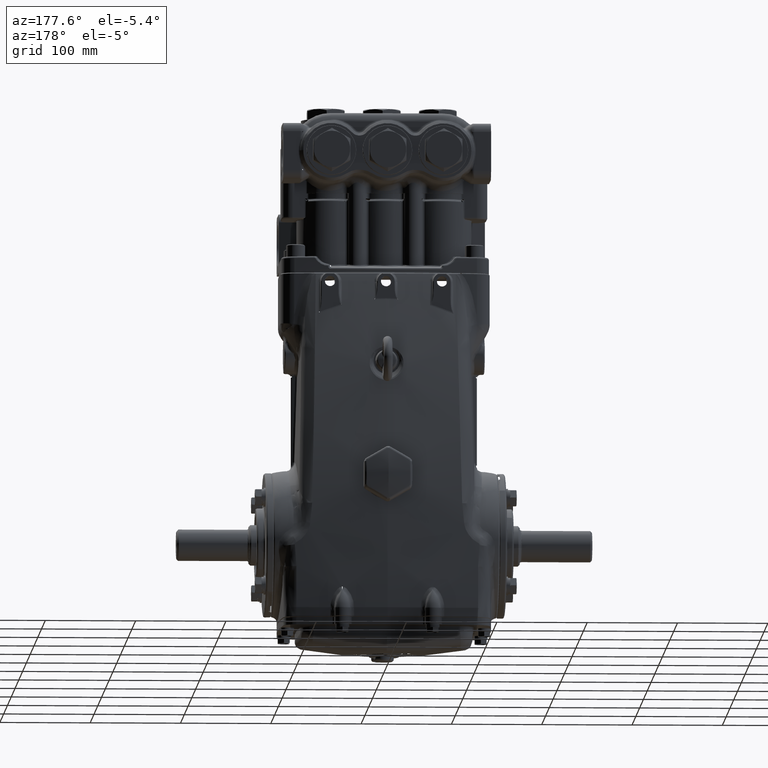
[diagram: clean part render]
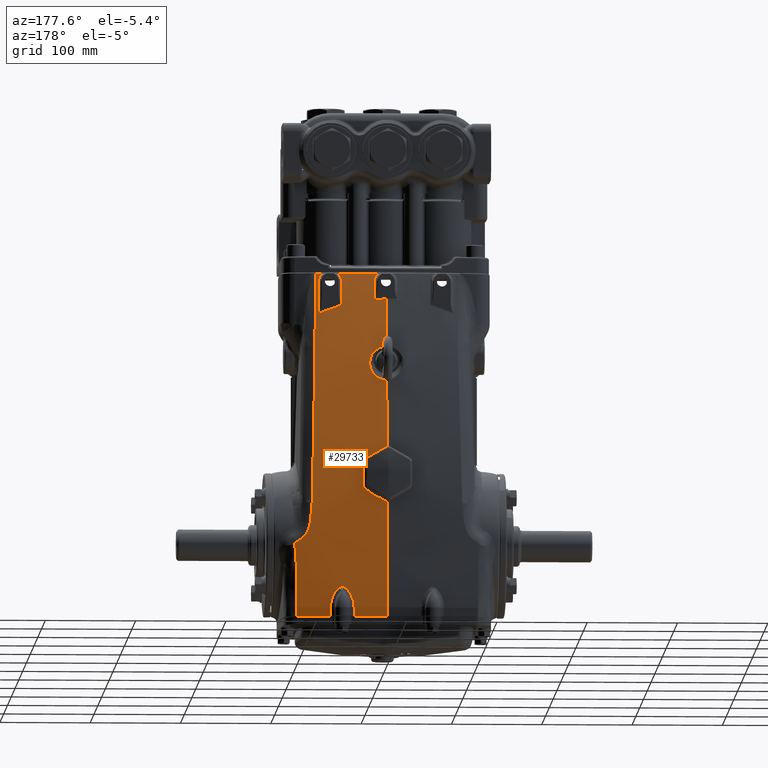
[diagram: same view with one face highlighted and labeled with its STEP entity id]
A machine part, auxiliary view. The second image highlights one B-rep face of the part: STEP entity #29733.
In plain terms, the highlighted face is a freeform B-spline surface patch.
Its self-contained STEP definition (entity closure, byte-faithful):
#58 = CARTESIAN_POINT ( 'NONE',  ( 0.7278770747608588332, 2.946710054304588322, 7.586424641682690151 ) ) ;
#170 = CARTESIAN_POINT ( 'NONE',  ( 3.550896890505610415, 3.579964127238663973, -3.464566929133851669 ) ) ;
#465 = CARTESIAN_POINT ( 'NONE',  ( -4.439592998116571196E-15, 2.668886950694707050, 9.166073472058796412 ) ) ;
#535 = CARTESIAN_POINT ( 'NONE',  ( 0.02649784136558758565, 2.800402659177489983, 8.456977757622452074 ) ) ;
#720 = CARTESIAN_POINT ( 'NONE',  ( 0.6337996687579305899, 2.856300720995040621, 8.115573416256081529 ) ) ;
#828 = CARTESIAN_POINT ( 'NONE',  ( 3.910609380025737547, 3.533348648068823206, -3.618486580175578560 ) ) ;
#1371 = CARTESIAN_POINT ( 'NONE',  ( 2.093149489784428496, 3.720980851094666253, -2.179665118248789391 ) ) ;
#1487 = CARTESIAN_POINT ( 'NONE',  ( 4.471409995120889214, 1.768528750177872144, 11.77166119179819681 ) ) ;
#2031 = CARTESIAN_POINT ( 'NONE',  ( 2.400749008151062291, 3.698362421685742252, -2.612220561306128896 ) ) ;
#2151 = CARTESIAN_POINT ( 'NONE',  ( 4.852819270003458030, 3.503779040536588507, 1.666088105590210811 ) ) ;
#2805 = CARTESIAN_POINT ( 'NONE',  ( 5.167209544333353222, 3.351205553017578165, -3.567180029828329157 ) ) ;
#2857 = CARTESIAN_POINT ( 'NONE',  ( 1.951495101333295068, 3.729976412463448909, -2.137463112498968254 ) ) ;
#2994 = ORIENTED_EDGE ( 'NONE', *, *, #102225, .F. ) ;
#3079 = ORIENTED_EDGE ( 'NONE', *, *, #48045, .F. ) ;
#3429 = CARTESIAN_POINT ( 'NONE',  ( 3.957575300856117639, 3.502685695250202347, -0.1830250696565230983 ) ) ;
#3463 = CARTESIAN_POINT ( 'NONE',  ( 5.472957139144666527, 1.607457717938263864, 11.77166884028941496 ) ) ;
#3856 = CARTESIAN_POINT ( 'NONE',  ( 0.5504903424137328471, 3.638348491730704293, 1.859588072616493282 ) ) ;
#4001 = CARTESIAN_POINT ( 'NONE',  ( 3.968290165586114693, 3.523263059867010050, -0.9085640490669377733 ) ) ;
#4147 = CARTESIAN_POINT ( 'NONE',  ( 3.647027291523595949, 3.531603023960265819, 0.04987067897304938574 ) ) ;
#4267 = CARTESIAN_POINT ( 'NONE',  ( -1.928577636452524757E-15, 3.779527559055117170, -3.464566929133858331 ) ) ;
#4482 = EDGE_CURVE ( 'NONE', #75051, #87867, #71244, .T. ) ;
#4492 = CARTESIAN_POINT ( 'NONE',  ( 3.075277783650770314, 1.948537073337893721, 11.72103320572180429 ) ) ;
#4521 = CARTESIAN_POINT ( 'NONE',  ( 1.021538932138479350, 3.573054311480178935, 2.556365884069527361 ) ) ;
#4913 = CARTESIAN_POINT ( 'NONE',  ( 0.09184632771057957279, 3.776525152449977885, -3.618486580175580780 ) ) ;
#5010 = VERTEX_POINT ( 'NONE', #20755 ) ;
#5164 = CARTESIAN_POINT ( 'NONE',  ( 0.9610687023262580730, 3.523769423611802232, 3.140184059703249098 ) ) ;
#5559 = CARTESIAN_POINT ( 'NONE',  ( 0.6073683219925143373, 2.081169930657294831, 11.77166119179829629 ) ) ;
#5570 = CARTESIAN_POINT ( 'NONE',  ( 1.922104550611924756, 2.292522915614044088, 10.65144719120739580 ) ) ;
#5612 = CARTESIAN_POINT ( 'NONE',  ( 2.102795006353571416, 2.028751148172999397, 11.72106292052996857 ) ) ;
#5777 = VERTEX_POINT ( 'NONE', #63807 ) ;
#5805 = CARTESIAN_POINT ( 'NONE',  ( 0.5917451397945919789, 3.488658221077960420, 3.597535458934494557 ) ) ;
#6088 = CARTESIAN_POINT ( 'NONE',  ( -2.730575176707549353E-15, 3.364668361119688811, 4.849011172016416182 ) ) ;
#6202 = CARTESIAN_POINT ( 'NONE',  ( 0.7729125040845628014, 3.870372719911775672, 1.666088105590241453 ) ) ;
#6258 = CARTESIAN_POINT ( 'NONE',  ( 0.3291895582293558054, 2.097288294947158960, 11.72108940143261435 ) ) ;
#6865 = CARTESIAN_POINT ( 'NONE',  ( 0.9922770438982243535, 3.762205617985176609, -3.567180029828336263 ) ) ;
#7278 = CARTESIAN_POINT ( 'NONE',  ( 0.4892614342494214785, 2.154574219338411201, 11.47617785457110173 ) ) ;
#7527 = CARTESIAN_POINT ( 'NONE',  ( 1.587140535387032036, 2.046882848346886163, 11.77166884028941318 ) ) ;
#7810 = CARTESIAN_POINT ( 'NONE',  ( 0.5099501571128493005, 2.188913224549490444, 11.33098419473857987 ) ) ;
#7919 = EDGE_CURVE ( 'NONE', #9857, #131419, #36888, .T. ) ;
#7930 = CARTESIAN_POINT ( 'NONE',  ( 2.860721376650469328, 1.995845229152549249, 11.61028039293616132 ) ) ;
#8184 = CARTESIAN_POINT ( 'NONE',  ( 1.853946495142653861, 3.256623459385927788, 6.788105265077284400 ) ) ;
#8206 = B_SPLINE_CURVE_WITH_KNOTS ( 'NONE', 3,
 ( #56268, #96996, #5570, #46246 ),
 .UNSPECIFIED., .F., .F.,
 ( 4, 4 ),
 ( 0.0000000000000000000, 0.02658444585355710169 ),
 .UNSPECIFIED. ) ;
#8353 = CARTESIAN_POINT ( 'NONE',  ( 1.613789042051937628, 3.749257858295591106, -2.443543072824756912 ) ) ;
#8573 = ORIENTED_EDGE ( 'NONE', *, *, #112179, .F. ) ;
#8859 = CARTESIAN_POINT ( 'NONE',  ( 2.146491763667625285, 3.706100310773567053, -3.515873479481095742 ) ) ;
#8964 = VERTEX_POINT ( 'NONE', #29604 ) ;
#8983 = CARTESIAN_POINT ( 'NONE',  ( -2.614932794956200729E-16, 3.770281652882307988, -0.002669951958018486858 ) ) ;
#9027 = CARTESIAN_POINT ( 'NONE',  ( 1.927981188648263622, 3.731439516928716227, -2.140962621584236558 ) ) ;
#9321 = CARTESIAN_POINT ( 'NONE',  ( 3.083322352733954830, 2.337157510713007369, 10.02836769579707266 ) ) ;
#9419 = CARTESIAN_POINT ( 'NONE',  ( 0.3445574489658475015, 3.040890423840047152, 7.056542576719021298 ) ) ;
#9421 = B_SPLINE_CURVE_WITH_KNOTS ( 'NONE', 3,
 ( #21383, #62085, #102807, #11387, #52063, #92790, #1371, #42056, #82772, #123455, #32054, #72763, #113443, #22039, #62744, #103463, #12032, #52715, #93439, #2031, #42714, #83428, #124117, #32707, #73411, #114103 ),
 .UNSPECIFIED., .F., .F.,
 ( 4, 2, 2, 2, 2, 2, 2, 2, 2, 2, 2, 2, 4 ),
 ( 0.0000000000000000000, 0.0009034963528193899664, 0.001806992705638779933, 0.003613985411277540784, 0.005420978116916302068, 0.007227970822555064220, 0.009034963528193825505, 0.01084195623383258505, 0.01445594164511011109, 0.01626293435074887411, 0.01806992705638763366, 0.02168391246766511460, 0.02891188329022006953 ),
 .UNSPECIFIED. ) ;
#9525 = CARTESIAN_POINT ( 'NONE',  ( 3.016919640314343454, 1.943001504886792796, 11.77167648878059758 ) ) ;
#9596 = CARTESIAN_POINT ( 'NONE',  ( 1.984895211281014316, 2.070927960838405912, 11.57929386269837835 ) ) ;
#9647 = CARTESIAN_POINT ( 'NONE',  ( 0.08596830526876800271, 3.780183506395370152, -3.424427974852214618 ) ) ;
#9857 = VERTEX_POINT ( 'NONE', #58329 ) ;
#9880 = CARTESIAN_POINT ( 'NONE',  ( 0.4894363958340310905, 2.826974963259975215, 8.292067755253222927 ) ) ;
#9889 = CARTESIAN_POINT ( 'NONE',  ( -2.426368433873683033E-31, 2.800345999324967750, 8.457339793419727414 ) ) ;
#9990 = CARTESIAN_POINT ( 'NONE',  ( 2.732372906742642993, 3.662491913869438509, -3.424425288762088737 ) ) ;
#10076 = CARTESIAN_POINT ( 'NONE',  ( 0.7019089523190054081, 2.964806425099193898, 7.482961821840446781 ) ) ;
#10184 = CARTESIAN_POINT ( 'NONE',  ( 3.480378942241151741, 1.894773315943172109, 11.77165354330708880 ) ) ;
#10303 = CARTESIAN_POINT ( 'NONE',  ( 1.320646138340188180, 3.752853252974094111, -3.424426759141142806 ) ) ;
#10543 = CARTESIAN_POINT ( 'NONE',  ( 0.06608084062435326533, 2.800708316618456539, 8.455025747844617356 ) ) ;
#10710 = B_SPLINE_CURVE_WITH_KNOTS ( 'NONE', 3,
 ( #67995, #108686, #17289, #57974, #98705, #7278, #47956, #88684, #129344, #37956, #78669, #119356, #27951, #68665, #109347 ),
 .UNSPECIFIED., .F., .F.,
 ( 4, 2, 1, 2, 2, 2, 2, 4 ),
 ( 0.0000000000000000000, 0.001450647595035343268, 0.002901295190070686536, 0.004351942785106029804, 0.005802590380141373072, 0.008703885570212059608, 0.01015453316524739941, 0.01160518076028274094 ),
 .UNSPECIFIED. ) ;
#10737 = CARTESIAN_POINT ( 'NONE',  ( 0.6673327816289111869, 2.866883710482619030, 8.052516058010294131 ) ) ;
#10850 = CARTESIAN_POINT ( 'NONE',  ( 3.909663389791890431, 3.536467545462993467, -3.464566929133856110 ) ) ;
#11043 = ORIENTED_EDGE ( 'NONE', *, *, #45457, .F. ) ;
#11288 = CARTESIAN_POINT ( 'NONE',  ( 2.952497887707134616, 1.960487052703961286, 11.72103769773075577 ) ) ;
#11387 = CARTESIAN_POINT ( 'NONE',  ( 2.030349408163365510, 3.725014280591822491, -2.147670018354700616 ) ) ;
#11502 = CARTESIAN_POINT ( 'NONE',  ( 4.271543492749502846, 3.486091687875209288, -3.618486580175591882 ) ) ;
#12032 = CARTESIAN_POINT ( 'NONE',  ( 2.343889731061508108, 3.703185555783065741, -2.484351639157587943 ) ) ;
#12147 = CARTESIAN_POINT ( 'NONE',  ( 4.792045308734939724, 1.720271994413820726, 11.77166119179817905 ) ) ;
#12354 = EDGE_CURVE ( 'NONE', #8964, #102793, #118275, .T. ) ;
#12678 = ORIENTED_EDGE ( 'NONE', *, *, #104483, .F. ) ;
#12810 = CARTESIAN_POINT ( 'NONE',  ( 5.146563101109652649, 3.456735926573856421, 1.666088105590221469 ) ) ;
#13099 = EDGE_CURVE ( 'NONE', #87867, #64715, #113322, .T. ) ;
#13436 = CARTESIAN_POINT ( 'NONE',  ( 3.992174508698265623, 3.499121618092365882, -0.2063480383189242595 ) ) ;
#13447 = CARTESIAN_POINT ( 'NONE',  ( 2.485481918468376072, 3.686168698613597083, -3.187052406555608730 ) ) ;
#13464 = CARTESIAN_POINT ( 'NONE',  ( 5.341456586250219019, 3.321576627475916421, -3.567180029828339816 ) ) ;
#13576 = VERTEX_POINT ( 'NONE', #58115 ) ;
#13863 = CARTESIAN_POINT ( 'NONE',  ( 0.4302525351139428467, 3.644779811184174267, 1.794853527570635876 ) ) ;
#14040 = B_SPLINE_CURVE_WITH_KNOTS ( 'NONE', 3,
 ( #37955, #78667, #119355, #27949, #68664, #109345, #17943, #58642, #99370, #7930, #48624, #89345, #130002, #38616, #79335 ),
 .UNSPECIFIED., .F., .F.,
 ( 4, 2, 1, 2, 2, 2, 2, 4 ),
 ( 0.0000000000000000000, 0.001441368081631610922, 0.002882736163263221844, 0.004324104244894833200, 0.005765472326526443689, 0.008648208489789794770, 0.01008957657142146858, 0.01153094465305314412 ),
 .UNSPECIFIED. ) ;
#14149 = CARTESIAN_POINT ( 'NONE',  ( 3.712617404604568350, 3.526436404052130325, -0.01472180527129508809 ) ) ;
#14260 = CARTESIAN_POINT ( 'NONE',  ( 5.245148147835386168E-15, 2.086614173228352520, 11.77165354330708702 ) ) ;
#14473 = CARTESIAN_POINT ( 'NONE',  ( 3.048361850561355890, 1.956657500317994680, 11.69856850100573276 ) ) ;
#14499 = CARTESIAN_POINT ( 'NONE',  ( 0.9467756070098002352, 3.594931152520063566, 2.314270772308697488 ) ) ;
#14533 = ORIENTED_EDGE ( 'NONE', *, *, #54123, .F. ) ;
#14796 = CARTESIAN_POINT ( 'NONE',  ( 3.357286280910636300, 3.537434917263858836, 0.6404082894666356385 ) ) ;
#14913 = CARTESIAN_POINT ( 'NONE',  ( 0.09207796433345837028, 3.779527559055117170, -3.464566929133858331 ) ) ;
#14950 = ORIENTED_EDGE ( 'NONE', *, *, #109769, .F. ) ;
#15165 = CARTESIAN_POINT ( 'NONE',  ( 1.003045876490069377, 3.534246040823792789, 3.011214165409622279 ) ) ;
#15267 = B_SPLINE_CURVE_WITH_KNOTS ( 'NONE', 3,
 ( #84168, #124855, #33435, #74149, #114837, #23420, #64144, #104855, #13436, #54117, #94844, #3429 ),
 .UNSPECIFIED., .F., .F.,
 ( 4, 2, 2, 2, 2, 4 ),
 ( 0.0000000000000000000, 0.0004037022764436566267, 0.0008074045528873132534, 0.001614809105774624122, 0.002422213658661934773, 0.003229618211549245207 ),
 .UNSPECIFIED. ) ;
#15561 = CARTESIAN_POINT ( 'NONE',  ( 0.2536578910174956403, 3.775828391058954292, -3.618486580175577672 ) ) ;
#15816 = CARTESIAN_POINT ( 'NONE',  ( 0.6466017690279757257, 3.491673699298003974, 3.556656959635872362 ) ) ;
#16210 = CARTESIAN_POINT ( 'NONE',  ( 0.8465838755881149869, 2.075548634242388779, 11.77166119179828030 ) ) ;
#16261 = CARTESIAN_POINT ( 'NONE',  ( 0.5151641289255387557, 2.094866612995622379, 11.72108779396292988 ) ) ;
#16339 = CARTESIAN_POINT ( 'NONE',  ( 2.776578712294497375, 2.367256534400909995, 10.01647498643020384 ) ) ;
#16791 = VERTEX_POINT ( 'NONE', #102415 ) ;
#16870 = CARTESIAN_POINT ( 'NONE',  ( 1.033392015430271149, 3.862919049952886041, 1.666088105590231017 ) ) ;
#16947 = CARTESIAN_POINT ( 'NONE',  ( 3.047974002438827767, 1.951203707326858439, 11.72103420910330307 ) ) ;
#17289 = CARTESIAN_POINT ( 'NONE',  ( 0.5089368212144949055, 2.180115438804921535, 11.36806387182767253 ) ) ;
#17544 = CARTESIAN_POINT ( 'NONE',  ( 1.206874167794767194, 3.754724690457360570, -3.567180029828330490 ) ) ;
#17822 = CARTESIAN_POINT ( 'NONE',  ( 0.5099428815279960503, 2.366960697202754371, 10.55811025315342633 ) ) ;
#17943 = CARTESIAN_POINT ( 'NONE',  ( 2.909796763776722806, 2.015373524481933742, 11.51074649501153147 ) ) ;
#18171 = CARTESIAN_POINT ( 'NONE',  ( 2.941979610148215851, 2.268880967348662292, 10.40703492316160705 ) ) ;
#18201 = CARTESIAN_POINT ( 'NONE',  ( 1.886664134870914555, 2.030794006280190356, 11.77166884028941318 ) ) ;
#18360 = CARTESIAN_POINT ( 'NONE',  ( 1.552044909759967339, 3.751937257860509689, -2.568846466195839451 ) ) ;
#18856 = CARTESIAN_POINT ( 'NONE',  ( 2.192517691082281672, 3.234782077177078996, 6.788105265077283512 ) ) ;
#19020 = CARTESIAN_POINT ( 'NONE',  ( 1.862070232197094555, 3.735488079041404674, -2.167121991210611665 ) ) ;
#19305 = CARTESIAN_POINT ( 'NONE',  ( 3.133913998702548387, 2.819013614672498669, 7.504584520848139206 ) ) ;
#19407 = CARTESIAN_POINT ( 'NONE',  ( 0.1773448048988609527, 3.052648438523922980, 6.991825061253480911 ) ) ;
#19465 = B_SPLINE_CURVE_WITH_KNOTS ( 'NONE', 3,
 ( #17822, #58518, #99247, #7810 ),
 .UNSPECIFIED., .F., .F.,
 ( 4, 4 ),
 ( -0.0005538247434498627230, 0.01959156647127489534 ),
 .UNSPECIFIED. ) ;
#19519 = CARTESIAN_POINT ( 'NONE',  ( 2.592469632888194653, 3.672636526991721162, -3.515873479481110842 ) ) ;
#19591 = CARTESIAN_POINT ( 'NONE',  ( 2.049716108370422951, 2.044848717037913044, 11.66951171389781550 ) ) ;
#19646 = CARTESIAN_POINT ( 'NONE',  ( 0.01866426497922715061, 3.780291642653942130, -3.424427992065139037 ) ) ;
#19970 = CARTESIAN_POINT ( 'NONE',  ( 2.485063582164364959, 3.687720508793976837, -3.068355571221270228 ) ) ;
#20075 = CARTESIAN_POINT ( 'NONE',  ( 0.6451301922819782098, 2.987631138711938306, 7.353630603804867327 ) ) ;
#20186 = CARTESIAN_POINT ( 'NONE',  ( 3.480378834013866385, 1.894767692750219057, 11.77167648878058159 ) ) ;
#20304 = CARTESIAN_POINT ( 'NONE',  ( 0.8142392989144296989, 3.770025519803677838, -3.424427220812389372 ) ) ;
#20478 = ORIENTED_EDGE ( 'NONE', *, *, #120903, .F. ) ;
#20543 = CARTESIAN_POINT ( 'NONE',  ( 0.1835905154519980598, 2.803308235039615237, 8.438511914163472127 ) ) ;
#20736 = CARTESIAN_POINT ( 'NONE',  ( 0.7353119341144761512, 2.907156593829260505, 7.815313341452440277 ) ) ;
#20755 = CARTESIAN_POINT ( 'NONE',  ( 1.447214697635420100, 3.747031218138626496, -3.424426838814072394 ) ) ;
#20839 = CARTESIAN_POINT ( 'NONE',  ( 3.815064366407124652, 1.855203238539271826, 11.77165354330708880 ) ) ;
#21177 = EDGE_CURVE ( 'NONE', #21464, #64940, #19465, .T. ) ;
#21383 = CARTESIAN_POINT ( 'NONE',  ( 1.984111132156669566, 3.727934984330343759, -2.137463051047669538 ) ) ;
#21464 = VERTEX_POINT ( 'NONE', #126483 ) ;
#21503 = CARTESIAN_POINT ( 'NONE',  ( 4.270460663811117996, 3.489240027746113970, -3.464566929133868989 ) ) ;
#22039 = CARTESIAN_POINT ( 'NONE',  ( 2.271067985336105099, 3.708748354778688139, -2.365127835354815300 ) ) ;
#22159 = CARTESIAN_POINT ( 'NONE',  ( 4.582039247850270947, 3.442311696620030670, -3.618486580175603873 ) ) ;
#22665 = ORIENTED_EDGE ( 'NONE', *, *, #73874, .F. ) ;
#22806 = CARTESIAN_POINT ( 'NONE',  ( 5.106079848036618074, 1.670502308164350191, 11.77166119179820036 ) ) ;
#22964 = VERTEX_POINT ( 'NONE', #28718 ) ;
#23420 = CARTESIAN_POINT ( 'NONE',  ( 4.017520617434954922, 3.497059505317807737, -0.2399026279863101241 ) ) ;
#23451 = CARTESIAN_POINT ( 'NONE',  ( 5.330941517263692475, 3.425513843878341902, 1.666088105590230795 ) ) ;
#23860 = CARTESIAN_POINT ( 'NONE',  ( 0.1709470524328088326, 3.652749009607986874, 1.715532760595537054 ) ) ;
#24008 = CARTESIAN_POINT ( 'NONE',  ( 3.957781727276481476, 3.531041095253700135, -1.223694571038026702 ) ) ;
#24109 = CARTESIAN_POINT ( 'NONE',  ( 5.472957139144666527, 3.298373256058383607, -3.567180029828340260 ) ) ;
#24146 = CARTESIAN_POINT ( 'NONE',  ( 3.957575300856117639, 3.502685695250202347, -0.1830250696565230983 ) ) ;
#24201 = EDGE_CURVE ( 'NONE', #122988, #75051, #92011, .T. ) ;
#24266 = CARTESIAN_POINT ( 'NONE',  ( 5.245154553062564334E-15, 2.086608538183193584, 11.77167648878057982 ) ) ;
#24318 = CARTESIAN_POINT ( 'NONE',  ( 0.1701662186997011383, 2.366950722864919587, 10.57665827853426066 ) ) ;
#24516 = CARTESIAN_POINT ( 'NONE',  ( 0.8827746331901759058, 3.606135510382342702, 2.193847204281599517 ) ) ;
#24810 = CARTESIAN_POINT ( 'NONE',  ( 3.401225199785841369, 3.541398924710303930, 0.4611027466014151477 ) ) ;
#24921 = CARTESIAN_POINT ( 'NONE',  ( 0.1152416266213332624, 2.086614173228352520, 11.77165354330708880 ) ) ;
#25160 = CARTESIAN_POINT ( 'NONE',  ( 1.031587060769977304, 3.545303762262257408, 2.877604171437786462 ) ) ;
#25531 = ORIENTED_EDGE ( 'NONE', *, *, #12354, .T. ) ;
#25567 = CARTESIAN_POINT ( 'NONE',  ( 0.2542215708781392913, 3.778826883383619162, -3.464566929133854778 ) ) ;
#25735 = ORIENTED_EDGE ( 'NONE', *, *, #112012, .T. ) ;
#25816 = CARTESIAN_POINT ( 'NONE',  ( 0.7831269239197775622, 3.501243735450998429, 3.428860972643069882 ) ) ;
#26223 = CARTESIAN_POINT ( 'NONE',  ( 0.5140337625577412473, 3.772663664345201173, -3.618486580175573231 ) ) ;
#26237 = ORIENTED_EDGE ( 'NONE', *, *, #128782, .F. ) ;
#26277 = CARTESIAN_POINT ( 'NONE',  ( 0.9157032318170638119, 2.085982717345006954, 11.72108410469878592 ) ) ;
#26356 = CARTESIAN_POINT ( 'NONE',  ( 2.096309718821030899, 2.367122706321125758, 10.26185737745098692 ) ) ;
#26478 = CARTESIAN_POINT ( 'NONE',  ( 0.1364188881467413017, 3.475777715168073101, 3.776171193961388450 ) ) ;
#26878 = CARTESIAN_POINT ( 'NONE',  ( 1.114009668533421316, 2.067240440788547851, 11.77166119179824477 ) ) ;
#26952 = CARTESIAN_POINT ( 'NONE',  ( 3.075277783650770314, 1.948537073337893721, 11.72103320572180429 ) ) ;
#27536 = CARTESIAN_POINT ( 'NONE',  ( 1.248211835035086592, 3.855137457873697659, 1.666088105590234125 ) ) ;
#27656 = CARTESIAN_POINT ( 'NONE',  ( 0.3291895582293558054, 2.097288294947158960, 11.72108940143261435 ) ) ;
#27949 = CARTESIAN_POINT ( 'NONE',  ( 2.937063316127539903, 2.038311024488808521, 11.40448764478979804 ) ) ;
#27951 = CARTESIAN_POINT ( 'NONE',  ( 0.3568954482566445430, 2.103047633739339339, 11.69630847844545229 ) ) ;
#28194 = CARTESIAN_POINT ( 'NONE',  ( 1.471930013320035924, 3.743418453583435390, -3.567180029828333154 ) ) ;
#28275 = B_SPLINE_CURVE_WITH_KNOTS ( 'NONE', 3,
 ( #2857, #43541, #84248, #124935 ),
 .UNSPECIFIED., .F., .F.,
 ( 4, 4 ),
 ( 0.0000000000000000000, 0.0008310209194798113229 ),
 .UNSPECIFIED. ) ;
#28363 = CARTESIAN_POINT ( 'NONE',  ( 1.503370859183929875, 3.753596658721070511, -2.700955149616227402 ) ) ;
#28476 = VERTEX_POINT ( 'NONE', #93786 ) ;
#28718 = CARTESIAN_POINT ( 'NONE',  ( 2.941961549965390166, 2.367296412994850829, 9.943150386838313537 ) ) ;
#28870 = CARTESIAN_POINT ( 'NONE',  ( 2.215416232719626066, 2.009262782782168522, 11.77166884028940963 ) ) ;
#29027 = CARTESIAN_POINT ( 'NONE',  ( 1.787361210172091486, 3.739933249615894351, -2.222994203376392974 ) ) ;
#29309 = CARTESIAN_POINT ( 'NONE',  ( 3.187411999549493391, 3.180972947435750431, 4.960797234820099710 ) ) ;
#29363 = ORIENTED_EDGE ( 'NONE', *, *, #71384, .T. ) ;
#29412 = CARTESIAN_POINT ( 'NONE',  ( 0.07190797947718077787, 3.055881296344433284, 6.974087968257927095 ) ) ;
#29529 = CARTESIAN_POINT ( 'NONE',  ( 2.609335073250302450, 3.203097206246929396, 6.788105265077278183 ) ) ;
#29598 = CARTESIAN_POINT ( 'NONE',  ( 2.102795006353571416, 2.028751148172999397, 11.72106292052996857 ) ) ;
#29604 = CARTESIAN_POINT ( 'NONE',  ( 0.5618534641297614485, 2.839490171766255067, 8.216384047504590171 ) ) ;
#29653 = CARTESIAN_POINT ( 'NONE',  ( 0.003580240475987215079, 3.780296833476090246, -3.424427992926413644 ) ) ;
#29733 = ADVANCED_FACE ( 'NONE', ( #115692 ), #131421, .T. ) ;
#29972 = CARTESIAN_POINT ( 'NONE',  ( 1.449436370701254084, 3.752553886590621168, -3.068352961861494865 ) ) ;
#30093 = CARTESIAN_POINT ( 'NONE',  ( 0.5412118630447703138, 3.013341899069502006, 7.209397616709785517 ) ) ;
#30204 = CARTESIAN_POINT ( 'NONE',  ( 3.039085619148012007, 3.633061029409601073, -3.515873479481128605 ) ) ;
#30277 = CARTESIAN_POINT ( 'NONE',  ( 1.922122788353095135, 2.134331509641288704, 11.33102910461567525 ) ) ;
#30329 = CARTESIAN_POINT ( 'NONE',  ( 0.4343154790150489664, 3.777366031335028573, -3.424427654907437280 ) ) ;
#30567 = CARTESIAN_POINT ( 'NONE',  ( 0.2849470415078252383, 2.807992161906759598, 8.409073563300729859 ) ) ;
#30755 = CARTESIAN_POINT ( 'NONE',  ( 0.7403392388227022503, 2.919330065639674121, 7.744447431306872964 ) ) ;
#30859 = CARTESIAN_POINT ( 'NONE',  ( 3.815064221221454943, 1.855197621372513872, 11.77167648878058159 ) ) ;
#31379 = EDGE_CURVE ( 'NONE', #101698, #64715, #14040, .T. ) ;
#31503 = CARTESIAN_POINT ( 'NONE',  ( 4.162177769972608132, 1.810919968495875665, 11.77165354330707814 ) ) ;
#32054 = CARTESIAN_POINT ( 'NONE',  ( 2.198105368913941593, 3.713949761585035869, -2.272979038656028461 ) ) ;
#32116 = CARTESIAN_POINT ( 'NONE',  ( 3.048361850561355890, 1.956657500317994680, 11.69856850100573276 ) ) ;
#32175 = CARTESIAN_POINT ( 'NONE',  ( 4.580943909269144854, 3.445473805234652964, -3.464566929133880979 ) ) ;
#32707 = CARTESIAN_POINT ( 'NONE',  ( 2.474389933526435659, 3.690731535997991308, -2.881858389204126514 ) ) ;
#32824 = CARTESIAN_POINT ( 'NONE',  ( 4.884117836039036931, 3.395809871824721160, -3.618486580175574563 ) ) ;
#33435 = CARTESIAN_POINT ( 'NONE',  ( 4.025049024739797865, 3.497154041686778569, -0.2704346335643836308 ) ) ;
#33466 = CARTESIAN_POINT ( 'NONE',  ( 5.310323719115619845, 1.636156385515110445, 11.77166119179825188 ) ) ;
#33875 = CARTESIAN_POINT ( 'NONE',  ( 0.03434867930412897896, 3.654130159005333223, 1.701892340744444398 ) ) ;
#34129 = CARTESIAN_POINT ( 'NONE',  ( 5.472957139144667416, 3.400455080633130844, 1.666088105590230795 ) ) ;
#34534 = CARTESIAN_POINT ( 'NONE',  ( 0.7114140796568098057, 3.626179280044382391, 1.983863787524302369 ) ) ;
#34824 = CARTESIAN_POINT ( 'NONE',  ( 3.495909033482428097, 3.540436192077720978, 0.2518544903901716592 ) ) ;
#34944 = CARTESIAN_POINT ( 'NONE',  ( 0.1152416621717195638, 2.086608538183193584, 11.77167648878058159 ) ) ;
#35188 = CARTESIAN_POINT ( 'NONE',  ( 1.036502736595741547, 3.562647748410305848, 2.674868530896328700 ) ) ;
#35575 = CARTESIAN_POINT ( 'NONE',  ( 0.3105895569424969027, 2.085522069509412102, 11.77165354330704083 ) ) ;
#35634 = CARTESIAN_POINT ( 'NONE',  ( 3.956496635504541004, 3.544607097930561501, -2.690908510629250738 ) ) ;
#35823 = CARTESIAN_POINT ( 'NONE',  ( 0.8824905872282758912, 3.511890274091833852, 3.290704624653680632 ) ) ;
#36232 = CARTESIAN_POINT ( 'NONE',  ( 0.5149578666385256076, 3.775650418719477042, -3.464566929133850337 ) ) ;
#36291 = CARTESIAN_POINT ( 'NONE',  ( 1.582965544775467137, 2.059494654824524762, 11.72107419104107784 ) ) ;
#36484 = CARTESIAN_POINT ( 'NONE',  ( 0.3345495088170377662, 3.479199246480747743, 3.728039042796367664 ) ) ;
#36634 = B_SPLINE_CURVE_WITH_KNOTS ( 'NONE', 3,
 ( #101423, #9990, #50681, #91416, #132057, #40683 ),
 .UNSPECIFIED., .F., .F.,
 ( 4, 2, 4 ),
 ( 0.0000000000000000000, 0.5000000000000000000, 1.000000000000000000 ),
 .UNSPECIFIED. ) ;
#36888 = B_SPLINE_CURVE_WITH_KNOTS ( 'NONE', 3,
 ( #99123, #38371, #79085, #119775, #28363, #69074, #109770, #18360, #59058, #99785, #8353, #49052, #89773, #130423, #39029, #79745, #120433, #29027, #69729, #110425, #19020, #59726, #100460, #9027, #49719, #90442 ),
 .UNSPECIFIED., .F., .F.,
 ( 4, 2, 2, 2, 2, 2, 2, 2, 2, 2, 2, 2, 4 ),
 ( 1.387778780781445521E-17, 0.007071297604193001012, 0.01060694640628949414, 0.01237477080733773854, 0.01414259520838598294, 0.01767824401048250643, 0.01944606841153077859, 0.02121389281257905074, 0.02298171721362732289, 0.02474954161467559505, 0.02651736601572386720, 0.02740127821624800328, 0.02828519041677213935 ),
 .UNSPECIFIED. ) ;
#36889 = CARTESIAN_POINT ( 'NONE',  ( 0.7349717768749606250, 3.768231822093953021, -3.618486580175579004 ) ) ;
#37373 = ORIENTED_EDGE ( 'NONE', *, *, #31379, .T. ) ;
#37548 = CARTESIAN_POINT ( 'NONE',  ( 1.329266146724833009, 2.058869309920938306, 11.77166119179824300 ) ) ;
#37589 = EDGE_CURVE ( 'NONE', #41772, #5777, #8206, .T. ) ;
#37955 = CARTESIAN_POINT ( 'NONE',  ( 2.942018870098606520, 2.055321169199334275, 11.33109302986570199 ) ) ;
#37956 = CARTESIAN_POINT ( 'NONE',  ( 0.4284137728423498825, 2.123047663350722036, 11.61052198504221700 ) ) ;
#38204 = CARTESIAN_POINT ( 'NONE',  ( 1.510842136852395434, 3.843602111723632309, 1.666088105590234569 ) ) ;
#38371 = CARTESIAN_POINT ( 'NONE',  ( 1.449918851696318844, 3.753734697060149283, -2.974230008064877584 ) ) ;
#38616 = CARTESIAN_POINT ( 'NONE',  ( 2.775637318178765689, 1.979432619919547109, 11.70901995671139595 ) ) ;
#38863 = CARTESIAN_POINT ( 'NONE',  ( 1.787857065752813002, 3.727583758897499600, -3.567180029828340260 ) ) ;
#39029 = CARTESIAN_POINT ( 'NONE',  ( 1.706781216719245320, 3.744477168076211004, -2.308692450912484873 ) ) ;
#39324 = CARTESIAN_POINT ( 'NONE',  ( 3.226349643378954912, 3.363306529552681390, 3.257775733343591718 ) ) ;
#39425 = CARTESIAN_POINT ( 'NONE',  ( 0.01809632242388046694, 3.056453453566303491, 6.970950354235379898 ) ) ;
#39535 = CARTESIAN_POINT ( 'NONE',  ( 2.617725865355033044, 1.978462945838119769, 11.77166884028940963 ) ) ;
#39956 = CARTESIAN_POINT ( 'NONE',  ( 3.285140023969417289, 3.510887348803120034, 1.261192525168034040 ) ) ;
#39971 = CARTESIAN_POINT ( 'NONE',  ( 1.447214697635420100, 3.747031218138626496, -3.424426838814072394 ) ) ;
#40091 = CARTESIAN_POINT ( 'NONE',  ( 0.4628743457298980513, 3.026483142881630339, 7.136281903159297890 ) ) ;
#40202 = CARTESIAN_POINT ( 'NONE',  ( 3.024283775525298701, 3.166270219949427034, 6.788105265077287953 ) ) ;
#40270 = CARTESIAN_POINT ( 'NONE',  ( 1.938005146175445281, 2.102862889945013691, 11.45883148275509278 ) ) ;
#40327 = CARTESIAN_POINT ( 'NONE',  ( 0.2443178480618151682, 3.779365126413368081, -3.424427862009360446 ) ) ;
#40567 = CARTESIAN_POINT ( 'NONE',  ( 0.3917463993891293628, 2.816130349110105513, 8.358586066938872960 ) ) ;
#40683 = CARTESIAN_POINT ( 'NONE',  ( 3.957806744477383898, 3.530638751054765212, -3.424421330816489029 ) ) ;
#40763 = CARTESIAN_POINT ( 'NONE',  ( 0.7308824034616145937, 2.943666922030246713, 7.603896051130369926 ) ) ;
#40868 = CARTESIAN_POINT ( 'NONE',  ( 3.551131950333158649, 3.578937583121846178, -3.515873479481092634 ) ) ;
#41028 = B_SPLINE_CURVE_WITH_KNOTS ( 'NONE', 3,
 ( #29598, #70308, #111006, #19591, #60304, #101024, #9596, #50290, #91006, #131663, #40270, #80984, #121672, #30277 ),
 .UNSPECIFIED., .F., .F.,
 ( 4, 2, 2, 2, 2, 2, 4 ),
 ( 0.002582751813968514002, 0.004020895202946114799, 0.005459038591923714295, 0.008335325369879038188, 0.009773468758856625541, 0.01121161214783421463, 0.01408789892578955587 ),
 .UNSPECIFIED. ) ;
#41159 = CARTESIAN_POINT ( 'NONE',  ( -2.426368433873683033E-31, 2.800345999324967750, 8.457339793419727414 ) ) ;
#41231 = CARTESIAN_POINT ( 'NONE',  ( 0.01326151787431532024, 2.800357350649328225, 8.457267252785493739 ) ) ;
#41419 = CARTESIAN_POINT ( 'NONE',  ( 0.6055776927427485301, 2.848762796093327054, 8.160648678135926204 ) ) ;
#41528 = CARTESIAN_POINT ( 'NONE',  ( 4.162177603785644386, 1.810914355847796475, 11.77167648878057093 ) ) ;
#41772 = VERTEX_POINT ( 'NONE', #77121 ) ;
#42056 = CARTESIAN_POINT ( 'NONE',  ( 2.130487266154514447, 3.718528088726727354, -2.207560004171498669 ) ) ;
#42177 = CARTESIAN_POINT ( 'NONE',  ( 4.471410051156515131, 1.768530620356180139, 11.77165354330703195 ) ) ;
#42714 = CARTESIAN_POINT ( 'NONE',  ( 2.408966609891268984, 3.697616689206262297, -2.634289480555723539 ) ) ;
#42830 = CARTESIAN_POINT ( 'NONE',  ( 4.883206227319553783, 3.398954604893998255, -3.464566929133852113 ) ) ;
#43483 = CARTESIAN_POINT ( 'NONE',  ( 5.167411960443389241, 3.350170941512124134, -3.618486580175569678 ) ) ;
#43541 = CARTESIAN_POINT ( 'NONE',  ( 1.962342473854572944, 3.729300037346045649, -2.136422643878229000 ) ) ;
#44131 = CARTESIAN_POINT ( 'NONE',  ( 5.472957139144666527, 1.607459596286650250, 11.77166119179825188 ) ) ;
#44547 = CARTESIAN_POINT ( 'NONE',  ( 0.6066692386818304250, 3.634623501762116238, 1.897385861898235548 ) ) ;
#44657 = EDGE_CURVE ( 'NONE', #87391, #122988, #44902, .T. ) ;
#44691 = CARTESIAN_POINT ( 'NONE',  ( 3.995321426493382955, 3.511514303246130453, -0.5946901213386277529 ) ) ;
#44836 = CARTESIAN_POINT ( 'NONE',  ( 3.601131524009420826, 3.534870486586991323, 0.1009905085611668973 ) ) ;
#44902 = B_SPLINE_CURVE_WITH_KNOTS ( 'NONE', 3,
 ( #49348, #90064, #130718, #39324, #80034, #120717, #29309, #70026, #110716, #19305, #60022, #100749, #9321, #50014, #90729, #131379 ),
 .UNSPECIFIED., .F., .F.,
 ( 4, 2, 2, 2, 2, 2, 2, 4 ),
 ( 0.0000000000000000000, 0.03264243258107458329, 0.06528486516214915270, 0.09792729774322372904, 0.1305697303242982776, 0.1958545954864474858, 0.2284970280675220899, 0.2611394606485967218 ),
 .UNSPECIFIED. ) ;
#44949 = CARTESIAN_POINT ( 'NONE',  ( -1.962849182129397175E-15, 3.778526756853404223, -3.515873479481098851 ) ) ;
#45194 = CARTESIAN_POINT ( 'NONE',  ( 1.024435411022623921, 3.571572505471939607, 2.573108338563020236 ) ) ;
#45457 = EDGE_CURVE ( 'NONE', #78185, #83284, #70181, .T. ) ;
#45593 = CARTESIAN_POINT ( 'NONE',  ( 0.3105896434531554839, 2.085516433863509711, 11.77167648878053363 ) ) ;
#45841 = CARTESIAN_POINT ( 'NONE',  ( 0.9322681569456621187, 3.518899654689752410, 3.201470031487209322 ) ) ;
#46234 = CARTESIAN_POINT ( 'NONE',  ( 0.6073682747169487639, 2.081171809806422246, 11.77165354330713321 ) ) ;
#46246 = CARTESIAN_POINT ( 'NONE',  ( 1.922095920021692050, 2.367095942449277235, 10.31063246072288386 ) ) ;
#46286 = CARTESIAN_POINT ( 'NONE',  ( 2.018456542692815159, 2.034393442867340696, 11.72106508302897510 ) ) ;
#46485 = CARTESIAN_POINT ( 'NONE',  ( 0.5211656489503374567, 3.485184594651426604, 3.644906831707051875 ) ) ;
#46728 = ORIENTED_EDGE ( 'NONE', *, *, #120787, .T. ) ;
#46765 = CARTESIAN_POINT ( 'NONE',  ( 7.279105301621049100E-31, 3.475299937072045431, 3.782957108726566098 ) ) ;
#46807 = VERTEX_POINT ( 'NONE', #74925 ) ;
#46884 = CARTESIAN_POINT ( 'NONE',  ( 0.7360768465995122245, 3.771206799700297374, -3.464566929133856554 ) ) ;
#47547 = CARTESIAN_POINT ( 'NONE',  ( 0.9918739559420277629, 3.761218231397257750, -3.618486580175576783 ) ) ;
#47776 = ORIENTED_EDGE ( 'NONE', *, *, #21177, .T. ) ;
#47956 = CARTESIAN_POINT ( 'NONE',  ( 0.4775450137061955647, 2.146354174145784111, 11.51111234678426776 ) ) ;
#48045 = EDGE_CURVE ( 'NONE', #5010, #9857, #54081, .T. ) ;
#48207 = CARTESIAN_POINT ( 'NONE',  ( 1.587140476837711534, 2.046884729551357918, 11.77166119179824832 ) ) ;
#48519 = EDGE_CURVE ( 'NONE', #46807, #78185, #9421, .T. ) ;
#48624 = CARTESIAN_POINT ( 'NONE',  ( 2.827099671641285283, 1.988096849904701369, 11.65465880862067394 ) ) ;
#48878 = CARTESIAN_POINT ( 'NONE',  ( 1.821228955840753061, 3.827681579267863121, 1.666088105590229684 ) ) ;
#49052 = CARTESIAN_POINT ( 'NONE',  ( 1.651241377271888577, 3.747397938625225411, -2.384462525471408245 ) ) ;
#49348 = CARTESIAN_POINT ( 'NONE',  ( 3.269204732900450772, 3.494166244084205619, 1.549803905489431921 ) ) ;
#49445 = CARTESIAN_POINT ( 'NONE',  ( 2.426368433873683033E-31, 3.056492047846547155, 6.970738720449814352 ) ) ;
#49552 = CARTESIAN_POINT ( 'NONE',  ( 2.146262778954119543, 3.705115858015877173, -3.567180029828336707 ) ) ;
#49669 = CARTESIAN_POINT ( 'NONE',  ( 7.605944187338040869E-16, 3.812515687427703082, -1.713049435544660382 ) ) ;
#49719 = CARTESIAN_POINT ( 'NONE',  ( 1.939589167925357627, 3.730718792896203784, -2.138605117172201364 ) ) ;
#49980 = CARTESIAN_POINT ( 'NONE',  ( 3.351908329817678833, 3.535673982351944744, 0.6863570147038513536 ) ) ;
#50014 = CARTESIAN_POINT ( 'NONE',  ( 3.066112386415988933, 2.153713693125371531, 10.86498774305070469 ) ) ;
#50114 = CARTESIAN_POINT ( 'NONE',  ( 0.3755485810278967884, 3.037703822819315835, 7.074132315306829177 ) ) ;
#50132 = EDGE_CURVE ( 'NONE', #78670, #28476, #85647, .T. ) ;
#50217 = CARTESIAN_POINT ( 'NONE',  ( 3.016919651616383646, 1.943003382287464165, 11.77166884028943272 ) ) ;
#50290 = CARTESIAN_POINT ( 'NONE',  ( 1.961667322955362724, 2.084500302008454931, 11.52909839401668535 ) ) ;
#50338 = CARTESIAN_POINT ( 'NONE',  ( 0.1018040044832867475, 3.780136294646871953, -3.424427967578548060 ) ) ;
#50575 = CARTESIAN_POINT ( 'NONE',  ( 0.4363343657687160371, 2.820723126459053987, 8.330345655919465742 ) ) ;
#50681 = CARTESIAN_POINT ( 'NONE',  ( 2.977875315138635681, 3.640172050401968118, -3.424424688606591882 ) ) ;
#50766 = CARTESIAN_POINT ( 'NONE',  ( 0.7163603307315447033, 2.955832995977534683, 7.534183236945378503 ) ) ;
#50873 = CARTESIAN_POINT ( 'NONE',  ( 3.503884924995972039, 3.116079712710064786, 6.788105265077288841 ) ) ;
#50994 = CARTESIAN_POINT ( 'NONE',  ( 1.447214697635420100, 3.747031218138626496, -3.424426838814072394 ) ) ;
#51159 = CARTESIAN_POINT ( 'NONE',  ( 9.705473735494732134E-31, 2.366950722864918255, 10.57665827853426066 ) ) ;
#51230 = CARTESIAN_POINT ( 'NONE',  ( 0.05291169456927666270, 2.800572481243037259, 8.455893058563377807 ) ) ;
#51422 = CARTESIAN_POINT ( 'NONE',  ( 0.6594638320486984062, 2.864168222148679277, 8.068666853094143221 ) ) ;
#51532 = CARTESIAN_POINT ( 'NONE',  ( 3.909978719869839470, 3.535427912998270195, -3.515873479481096631 ) ) ;
#51963 = CARTESIAN_POINT ( 'NONE',  ( 2.856988886733764055, 1.969332119163633044, 11.72104101039461277 ) ) ;
#52063 = CARTESIAN_POINT ( 'NONE',  ( 2.041536747216510683, 3.724301690662265685, -2.152060709845910136 ) ) ;
#52181 = CARTESIAN_POINT ( 'NONE',  ( 4.471409883049637379, 1.768525009821256377, 11.77167648878052475 ) ) ;
#52715 = CARTESIAN_POINT ( 'NONE',  ( 2.373803387733699477, 3.700704596208036712, -2.547482343565529828 ) ) ;
#52827 = CARTESIAN_POINT ( 'NONE',  ( 4.792045355371264748, 1.720273865481031450, 11.77165354330701419 ) ) ;
#53491 = CARTESIAN_POINT ( 'NONE',  ( 5.166804712113282072, 3.353274776028486226, -3.464566929133847228 ) ) ;
#54081 = B_SPLINE_CURVE_WITH_KNOTS ( 'NONE', 3,
 ( #39971, #80680, #121368, #29972 ),
 .UNSPECIFIED., .F., .F.,
 ( 4, 4 ),
 ( 0.001019701756819855511, 0.01006524144787350819 ),
 .UNSPECIFIED. ) ;
#54117 = CARTESIAN_POINT ( 'NONE',  ( 3.975784413319147337, 3.500745599040742562, -0.1933203870309013472 ) ) ;
#54123 = EDGE_CURVE ( 'NONE', #84409, #13576, #102153, .T. ) ;
#54133 = CARTESIAN_POINT ( 'NONE',  ( 2.485991824541025075, 3.684251757287082540, -3.305742822090556921 ) ) ;
#54153 = CARTESIAN_POINT ( 'NONE',  ( 5.341559675161851040, 3.320557635158245535, -3.618486580175580780 ) ) ;
#54558 = CARTESIAN_POINT ( 'NONE',  ( 0.4614030653125713033, 3.643299235763641342, 1.809695604549146353 ) ) ;
#54842 = CARTESIAN_POINT ( 'NONE',  ( 3.695634013244609495, 3.527833446340042034, 0.001003933168903212853 ) ) ;
#54960 = CARTESIAN_POINT ( 'NONE',  ( 3.853991025291895839E-15, 3.310494761505669459, 6.788105265077287065 ) ) ;
#55170 = CARTESIAN_POINT ( 'NONE',  ( 3.056714633409059800, 1.953847332546420956, 11.70674875285134853 ) ) ;
#55199 = CARTESIAN_POINT ( 'NONE',  ( 0.9855687956542955597, 3.586287134623951989, 2.408543342345550453 ) ) ;
#55490 = CARTESIAN_POINT ( 'NONE',  ( 3.351908329817678833, 3.535673982351944744, 0.6863570147038513536 ) ) ;
#55603 = CARTESIAN_POINT ( 'NONE',  ( 0.09200075212583211370, 3.778526756853404223, -3.515873479481098851 ) ) ;
#55733 = B_SPLINE_CURVE_WITH_KNOTS ( 'NONE', 3,
 ( #51159, #91896, #465, #41159 ),
 .UNSPECIFIED., .F., .F.,
 ( 4, 4 ),
 ( 0.07683548032053984234, 0.2183527470823627969 ),
 .UNSPECIFIED. ) ;
#55854 = CARTESIAN_POINT ( 'NONE',  ( 0.9985212442439773683, 3.532901548156912597, 3.027631203323252862 ) ) ;
#56253 = CARTESIAN_POINT ( 'NONE',  ( 0.6073684165436453730, 2.081166172359040001, 11.77167648878062600 ) ) ;
#56268 = CARTESIAN_POINT ( 'NONE',  ( 1.922122788353095135, 2.134331509641288704, 11.33102910461567525 ) ) ;
#56497 = CARTESIAN_POINT ( 'NONE',  ( 0.6330671108750342002, 3.490888361976953735, 3.567271661205070554 ) ) ;
#56773 = CARTESIAN_POINT ( 'NONE',  ( 2.426368433873683033E-31, 3.056492047846547155, 6.970738720449814352 ) ) ;
#56888 = CARTESIAN_POINT ( 'NONE',  ( 0.8465838190546602915, 2.075550513993995150, 11.77165354330711544 ) ) ;
#56940 = CARTESIAN_POINT ( 'NONE',  ( 0.4086611134673457379, 2.096382550043305315, 11.72108846029938611 ) ) ;
#57015 = CARTESIAN_POINT ( 'NONE',  ( 2.941961549965390166, 2.367296412994850829, 9.943150386838313537 ) ) ;
#57079 = ORIENTED_EDGE ( 'NONE', *, *, #112507, .T. ) ;
#57544 = CARTESIAN_POINT ( 'NONE',  ( 0.9930832198106175346, 3.764180391161014327, -3.464566929133854334 ) ) ;
#57974 = CARTESIAN_POINT ( 'NONE',  ( 0.5049536381081852765, 2.171454191001705780, 11.40465261991973733 ) ) ;
#58115 = CARTESIAN_POINT ( 'NONE',  ( 3.351908329817678833, 3.535673982351944744, 0.6863570147038513536 ) ) ;
#58228 = CARTESIAN_POINT ( 'NONE',  ( 1.206468896547313152, 3.753740251561121788, -3.618486580175571454 ) ) ;
#58329 = CARTESIAN_POINT ( 'NONE',  ( 1.449436370701254084, 3.752553886590621168, -3.068352961861494865 ) ) ;
#58518 = CARTESIAN_POINT ( 'NONE',  ( 0.5099452258232963775, 2.309342111276952103, 10.81613085555719422 ) ) ;
#58642 = CARTESIAN_POINT ( 'NONE',  ( 2.902948568249489103, 2.011834809679183156, 11.52806965970086672 ) ) ;
#58865 = CARTESIAN_POINT ( 'NONE',  ( 2.941998717731987512, 2.164882209310877492, 10.86971374829978565 ) ) ;
#58896 = CARTESIAN_POINT ( 'NONE',  ( 1.886664084657733831, 2.030795887613818351, 11.77166119179824832 ) ) ;
#59058 = CARTESIAN_POINT ( 'NONE',  ( 1.561445849148193288, 3.751560799230096332, -2.547479701091002635 ) ) ;
#59559 = CARTESIAN_POINT ( 'NONE',  ( 2.169619219731707016, 3.805530039300215606, 1.666088105590230795 ) ) ;
#59726 = CARTESIAN_POINT ( 'NONE',  ( 1.894064700851531446, 3.733532004044151087, -2.152060852376258104 ) ) ;
#60022 = CARTESIAN_POINT ( 'NONE',  ( 3.117120338754920006, 2.672174463103909048, 8.348257340075480926 ) ) ;
#60121 = CARTESIAN_POINT ( 'NONE',  ( 0.2459108933441835065, 3.048850915802357786, 7.012694156715981286 ) ) ;
#60229 = CARTESIAN_POINT ( 'NONE',  ( 2.592385725224701787, 3.671643223921336574, -3.567180029828351806 ) ) ;
#60304 = CARTESIAN_POINT ( 'NONE',  ( 2.037546284313050737, 2.049126121222538899, 11.65519690014961007 ) ) ;
#60356 = CARTESIAN_POINT ( 'NONE',  ( 0.03846147198040698184, 3.780277157642622843, -3.424427989681956941 ) ) ;
#60436 = VERTEX_POINT ( 'NONE', #119173 ) ;
#60593 = CARTESIAN_POINT ( 'NONE',  ( 0.5618534641297614485, 2.839490171766255067, 8.216384047504590171 ) ) ;
#60788 = CARTESIAN_POINT ( 'NONE',  ( 0.6615934391653726099, 2.982063879924476968, 7.385060971766417737 ) ) ;
#60892 = CARTESIAN_POINT ( 'NONE',  ( 3.480378870089628318, 1.894769567147870148, 11.77166884028941851 ) ) ;
#60954 = CARTESIAN_POINT ( 'NONE',  ( 3.957575300856117639, 3.502685695250202347, -0.1830250696565230983 ) ) ;
#61013 = CARTESIAN_POINT ( 'NONE',  ( 0.9408573345663645560, 3.766495515055890309, -3.424427083719387532 ) ) ;
#61014 = B_SPLINE_CURVE_WITH_KNOTS ( 'NONE', 3,
 ( #109572, #18171, #58865, #99591 ),
 .UNSPECIFIED., .F., .F.,
 ( 4, 4 ),
 ( -0.0006225538101460027741, 0.03551212282342592480 ),
 .UNSPECIFIED. ) ;
#61249 = CARTESIAN_POINT ( 'NONE',  ( 0.1316193107680226904, 2.801803584077672937, 8.448046667622547190 ) ) ;
#61444 = CARTESIAN_POINT ( 'NONE',  ( 0.7228624627434075967, 2.892081966186095254, 7.903420746440565026 ) ) ;
#61552 = CARTESIAN_POINT ( 'NONE',  ( 3.846597374202047170, 3.075200800515574873, 6.788105265077287953 ) ) ;
#62085 = CARTESIAN_POINT ( 'NONE',  ( 1.996016727116062484, 3.727187006497952204, -2.138605013861039073 ) ) ;
#62208 = CARTESIAN_POINT ( 'NONE',  ( 4.270821606790579317, 3.488190581122478928, -3.515873479481109953 ) ) ;
#62744 = CARTESIAN_POINT ( 'NONE',  ( 2.284190644097326750, 3.707775836355402976, -2.384464635550700429 ) ) ;
#62863 = CARTESIAN_POINT ( 'NONE',  ( 4.792045215462290564, 1.720268252279398835, 11.77167648878050876 ) ) ;
#63512 = CARTESIAN_POINT ( 'NONE',  ( 5.106079879102392027, 1.670504181323860138, 11.77165354330703551 ) ) ;
#63807 = CARTESIAN_POINT ( 'NONE',  ( 1.922095920021692050, 2.367095942449277235, 10.31063246072288386 ) ) ;
#64144 = CARTESIAN_POINT ( 'NONE',  ( 4.012390505018204045, 3.497392794699837992, -0.2306313316086369414 ) ) ;
#64174 = CARTESIAN_POINT ( 'NONE',  ( 5.341250408426953200, 3.323614612111258193, -3.464566929133858331 ) ) ;
#64578 = CARTESIAN_POINT ( 'NONE',  ( 0.2709160517427007253, 3.650717894589675439, 1.735643675422942067 ) ) ;
#64715 = VERTEX_POINT ( 'NONE', #77946 ) ;
#64792 = EDGE_LOOP ( 'NONE', ( #12678, #80446, #2994, #46728, #25531, #68633, #108873, #47776, #29363, #22665, #86489, #85100, #25735, #57079, #37373, #128434, #121828, #87088, #101146, #118883, #14533, #14950, #20478, #69461, #26237, #11043, #91590, #77191, #105598, #3079, #8573 ) ) ;
#64825 = CARTESIAN_POINT ( 'NONE',  ( 5.472957139144666527, 3.297372453856670660, -3.618486580175581224 ) ) ;
#64873 = CARTESIAN_POINT ( 'NONE',  ( 3.875339862577541261, 3.511601906980351462, -0.1414129753123117283 ) ) ;
#64940 = VERTEX_POINT ( 'NONE', #65183 ) ;
#64980 = CARTESIAN_POINT ( 'NONE',  ( 5.245152417986838805E-15, 2.086610416531579748, 11.77166884028941496 ) ) ;
#65036 = CARTESIAN_POINT ( 'NONE',  ( 0.3402254847084953959, 2.366954046111033882, 10.57045866532416234 ) ) ;
#65183 = CARTESIAN_POINT ( 'NONE',  ( 0.5099501571128493005, 2.188913224549490444, 11.33098419473857987 ) ) ;
#65228 = CARTESIAN_POINT ( 'NONE',  ( 0.9001469298910884653, 3.603406470987037480, 2.222964837826389761 ) ) ;
#65515 = CARTESIAN_POINT ( 'NONE',  ( 3.387411021106550901, 3.540794123759913870, 0.5054378276858909613 ) ) ;
#65628 = CARTESIAN_POINT ( 'NONE',  ( 0.1075204058587092976, 3.310494761505669459, 6.788105265077287953 ) ) ;
#65871 = CARTESIAN_POINT ( 'NONE',  ( 1.015051384682704949, 3.538358104258760850, 2.961299302375628439 ) ) ;
#66167 = CARTESIAN_POINT ( 'NONE',  ( 3.269204732900450772, 3.494166244084205619, 1.549803905489431921 ) ) ;
#66278 = CARTESIAN_POINT ( 'NONE',  ( 0.2540336775912581113, 3.777827385942064353, -3.515873479481095742 ) ) ;
#66528 = CARTESIAN_POINT ( 'NONE',  ( 0.7113994493961518506, 3.495816102643675372, 3.500996342781727222 ) ) ;
#66929 = CARTESIAN_POINT ( 'NONE',  ( 0.8465839886550242666, 2.075544874739176038, 11.77167648878060824 ) ) ;
#66985 = CARTESIAN_POINT ( 'NONE',  ( 0.7822046932674382447, 2.089582695226209097, 11.72108557706217624 ) ) ;
#67057 = CARTESIAN_POINT ( 'NONE',  ( 2.268491721984755571, 2.367153330336693173, 10.20667932605801553 ) ) ;
#67171 = CARTESIAN_POINT ( 'NONE',  ( 0.06879029287596165332, 3.475299937072044987, 3.782957108726556328 ) ) ;
#67564 = CARTESIAN_POINT ( 'NONE',  ( 1.114009606669574381, 2.067242321195892796, 11.77165354330707991 ) ) ;
#67647 = CARTESIAN_POINT ( 'NONE',  ( 3.066176771644165910, 1.949429934523600805, 11.72103354203386694 ) ) ;
#67995 = CARTESIAN_POINT ( 'NONE',  ( 0.5099501571128493005, 2.188913224549490444, 11.33098419473857987 ) ) ;
#68242 = CARTESIAN_POINT ( 'NONE',  ( 1.207684710289675500, 3.756693568249837689, -3.464566929133849005 ) ) ;
#68633 = ORIENTED_EDGE ( 'NONE', *, *, #104945, .F. ) ;
#68664 = CARTESIAN_POINT ( 'NONE',  ( 2.931168053637165372, 2.030235626081692057, 11.44058907420933302 ) ) ;
#68665 = CARTESIAN_POINT ( 'NONE',  ( 0.3433688776963090827, 2.100076676435944201, 11.70908572002509374 ) ) ;
#68905 = CARTESIAN_POINT ( 'NONE',  ( 1.901787320747102331E-15, 3.780296879149135147, -3.424427673772763914 ) ) ;
#68913 = CARTESIAN_POINT ( 'NONE',  ( 1.471548521912855900, 3.742436260856570662, -3.618486580175574119 ) ) ;
#69074 = CARTESIAN_POINT ( 'NONE',  ( 1.526172145244721667, 3.752883460819519179, -2.634286891848193868 ) ) ;
#69461 = ORIENTED_EDGE ( 'NONE', *, *, #97885, .F. ) ;
#69575 = CARTESIAN_POINT ( 'NONE',  ( 2.215416197576240975, 2.009264663639782622, 11.77166119179824477 ) ) ;
#69729 = CARTESIAN_POINT ( 'NONE',  ( 1.805088076041678757, 3.738895607890095008, -2.207559827024686339 ) ) ;
#70026 = CARTESIAN_POINT ( 'NONE',  ( 3.169077725909747123, 3.071167649471457040, 5.810104169129147955 ) ) ;
#70124 = CARTESIAN_POINT ( 'NONE',  ( 0.08966484943308102029, 3.055518208070054254, 6.976079235380416854 ) ) ;
#70181 = B_SPLINE_CURVE_WITH_KNOTS ( 'NONE', 3,
 ( #104868, #13447, #54133, #94855 ),
 .UNSPECIFIED., .F., .F.,
 ( 4, 4 ),
 ( 0.0000000000000000000, 0.009045472075510164675 ),
 .UNSPECIFIED. ) ;
#70237 = CARTESIAN_POINT ( 'NONE',  ( 2.600944306900995429, 3.772960137100564992, 1.666088105590220358 ) ) ;
#70308 = CARTESIAN_POINT ( 'NONE',  ( 2.088698376224152664, 2.032615686645046438, 11.70912154631549384 ) ) ;
#70359 = CARTESIAN_POINT ( 'NONE',  ( 0.007164389041385496766, 3.780296267402503130, -3.424427992831557077 ) ) ;
#70796 = CARTESIAN_POINT ( 'NONE',  ( 0.5866270310992308668, 3.003605991276457665, 7.263837854307576336 ) ) ;
#70904 = CARTESIAN_POINT ( 'NONE',  ( 3.039159260161060860, 3.632054052153720569, -3.567180029828369570 ) ) ;
#71024 = CARTESIAN_POINT ( 'NONE',  ( 0.5609662830216213258, 3.775364835587625034, -3.424427507711116370 ) ) ;
#71244 = B_SPLINE_CURVE_WITH_KNOTS ( 'NONE', 3,
 ( #26952, #67647, #108346, #16947 ),
 .UNSPECIFIED., .F., .F.,
 ( 4, 4 ),
 ( 0.0000000000000000000, 1.000000000000000000 ),
 .UNSPECIFIED. ) ;
#71268 = CARTESIAN_POINT ( 'NONE',  ( 0.2601571356431516824, 2.806611693287363263, 8.417717863340211437 ) ) ;
#71384 = EDGE_CURVE ( 'NONE', #64940, #112110, #10710, .T. ) ;
#71459 = CARTESIAN_POINT ( 'NONE',  ( 0.7397035643693123941, 2.916289227052626387, 7.762113618273943416 ) ) ;
#71543 = B_SPLINE_CURVE_WITH_KNOTS ( 'NONE', 3,
 ( #127044, #35634, #76356, #117042 ),
 .UNSPECIFIED., .F., .F.,
 ( 4, 4 ),
 ( 0.001019743324161593440, 0.05691906024910405038 ),
 .UNSPECIFIED. ) ;
#71568 = CARTESIAN_POINT ( 'NONE',  ( 3.815064269616678327, 1.855199493761433116, 11.77166884028941851 ) ) ;
#72107 = CARTESIAN_POINT ( 'NONE',  ( 3.957806744477383898, 3.530638751054765212, -3.424421330816489029 ) ) ;
#72223 = CARTESIAN_POINT ( 'NONE',  ( 4.198272067918779271, 3.029936114581017303, 6.788105265077278183 ) ) ;
#72763 = CARTESIAN_POINT ( 'NONE',  ( 2.228721276398926587, 3.711805618293231301, -2.308693809652148765 ) ) ;
#72877 = CARTESIAN_POINT ( 'NONE',  ( 4.581309022129520514, 3.444419769029778866, -3.515873479481121944 ) ) ;
#73411 = CARTESIAN_POINT ( 'NONE',  ( 2.484731854132021578, 3.688951047317098997, -2.974232571966362038 ) ) ;
#73535 = CARTESIAN_POINT ( 'NONE',  ( 5.106079785905071944, 1.670498561845330077, 11.77167648878053008 ) ) ;
#73796 = CARTESIAN_POINT ( 'NONE',  ( 2.102795006353571416, 2.028751148172999397, 11.72106292052996857 ) ) ;
#73874 = EDGE_CURVE ( 'NONE', #126999, #112110, #127843, .T. ) ;
#74149 = CARTESIAN_POINT ( 'NONE',  ( 4.023712573539350856, 3.496965784373414987, -0.2600465538341527605 ) ) ;
#74180 = CARTESIAN_POINT ( 'NONE',  ( 5.310323734937171025, 1.636158261071772202, 11.77165354330708702 ) ) ;
#74586 = CARTESIAN_POINT ( 'NONE',  ( 0.06870179825646191563, 3.653956845846769053, 1.703601677684709825 ) ) ;
#74838 = CARTESIAN_POINT ( 'NONE',  ( 5.472957139144666527, 3.300374860461809945, -3.464566929133858775 ) ) ;
#74925 = CARTESIAN_POINT ( 'NONE',  ( 1.984111132156669566, 3.727934984330343759, -2.137463051047669538 ) ) ;
#75051 = VERTEX_POINT ( 'NONE', #80309 ) ;
#75241 = CARTESIAN_POINT ( 'NONE',  ( 0.7838772260317130591, 3.619132060473199797, 2.056793543875875319 ) ) ;
#75529 = CARTESIAN_POINT ( 'NONE',  ( 3.452882985647468317, 3.541618122772946187, 0.3332515489540073261 ) ) ;
#75648 = CARTESIAN_POINT ( 'NONE',  ( 0.1152416503215907967, 2.086610416531579748, 11.77166884028941851 ) ) ;
#75655 = VERTEX_POINT ( 'NONE', #68905 ) ;
#75894 = CARTESIAN_POINT ( 'NONE',  ( 1.038138966578933564, 3.559708373852714214, 2.708789585773724973 ) ) ;
#76294 = CARTESIAN_POINT ( 'NONE',  ( 0.2918002282543786241, 3.309533133802543770, 6.788105265077256867 ) ) ;
#76356 = CARTESIAN_POINT ( 'NONE',  ( 3.956488121064076324, 3.544741315970752815, -1.957219153233058506 ) ) ;
#76536 = B_SPLINE_CURVE_WITH_KNOTS ( 'NONE', 3,
 ( #100407, #8983, #49669, #90393 ),
 .UNSPECIFIED., .F., .F.,
 ( 4, 4 ),
 ( 0.6644276810892916219, 1.000000000000000000 ),
 .UNSPECIFIED. ) ;
#76537 = CARTESIAN_POINT ( 'NONE',  ( 0.8733267082850935115, 3.510757807458485313, 3.305252506140973878 ) ) ;
#76943 = CARTESIAN_POINT ( 'NONE',  ( 0.5146498319449308578, 3.774654833928051900, -3.515873479481091302 ) ) ;
#76996 = CARTESIAN_POINT ( 'NONE',  ( 1.316102767632004511, 2.071790653516297986, 11.72107870378501104 ) ) ;
#77121 = CARTESIAN_POINT ( 'NONE',  ( 1.922122788353095135, 2.134331509641288704, 11.33102910461567525 ) ) ;
#77191 = ORIENTED_EDGE ( 'NONE', *, *, #108523, .F. ) ;
#77192 = CARTESIAN_POINT ( 'NONE',  ( 0.2691688120389184591, 3.477779146167875535, 3.747954516476541986 ) ) ;
#77561 = CARTESIAN_POINT ( 'NONE',  ( 1.951495101333295068, 3.729976412463448909, -2.137463112498968254 ) ) ;
#77594 = CARTESIAN_POINT ( 'NONE',  ( 1.114009792261114962, 2.067236679973857960, 11.77167648878057449 ) ) ;
#77946 = CARTESIAN_POINT ( 'NONE',  ( 2.761447172062921673, 1.977739828078834305, 11.72104414038030562 ) ) ;
#78185 = VERTEX_POINT ( 'NONE', #19970 ) ;
#78254 = CARTESIAN_POINT ( 'NONE',  ( 1.329266084525905889, 2.058871190780679594, 11.77165354330707814 ) ) ;
#78667 = CARTESIAN_POINT ( 'NONE',  ( 2.942019674455611966, 2.050948174681008762, 11.34950841791881615 ) ) ;
#78669 = CARTESIAN_POINT ( 'NONE',  ( 0.3947826122579397023, 2.112704777342991669, 11.65484239511345876 ) ) ;
#78670 = VERTEX_POINT ( 'NONE', #98928 ) ;
#78916 = CARTESIAN_POINT ( 'NONE',  ( 1.472692996134396193, 3.745382839037164402, -3.464566929133851669 ) ) ;
#79085 = CARTESIAN_POINT ( 'NONE',  ( 1.460401765533258844, 3.754212180687106493, -2.881855827106080348 ) ) ;
#79335 = CARTESIAN_POINT ( 'NONE',  ( 2.761447172062921673, 1.977739828078834305, 11.72104414038030562 ) ) ;
#79576 = CARTESIAN_POINT ( 'NONE',  ( 1.787529890359793816, 3.726602407717397814, -3.618486580175581224 ) ) ;
#79745 = CARTESIAN_POINT ( 'NONE',  ( 1.737426133053374011, 3.742785969842905125, -2.272978183218842485 ) ) ;
#80034 = CARTESIAN_POINT ( 'NONE',  ( 3.216296056407198733, 3.322383220422969519, 3.684119343499719257 ) ) ;
#80134 = CARTESIAN_POINT ( 'NONE',  ( 0.03162639638780506690, 3.056384167853153588, 6.971330285472710386 ) ) ;
#80245 = CARTESIAN_POINT ( 'NONE',  ( 2.617725852477320814, 1.978464825337433730, 11.77166119179824477 ) ) ;
#80309 = CARTESIAN_POINT ( 'NONE',  ( 3.075277783650770314, 1.948537073337893721, 11.72103320572180429 ) ) ;
#80446 = ORIENTED_EDGE ( 'NONE', *, *, #50132, .T. ) ;
#80657 = CARTESIAN_POINT ( 'NONE',  ( 3.272995533038371541, 3.503245289681334196, 1.405259770075456993 ) ) ;
#80680 = CARTESIAN_POINT ( 'NONE',  ( 1.448083069729046768, 3.749224088689538270, -3.305741936332727171 ) ) ;
#80799 = CARTESIAN_POINT ( 'NONE',  ( 0.4767192319095203135, 3.024395439915378514, 7.147874119973693929 ) ) ;
#80915 = CARTESIAN_POINT ( 'NONE',  ( 3.031647876830131594, 3.734765732253502168, 1.666088105590217028 ) ) ;
#80984 = CARTESIAN_POINT ( 'NONE',  ( 1.926163603352576192, 2.116488260724696424, 11.40497519155297113 ) ) ;
#81038 = CARTESIAN_POINT ( 'NONE',  ( 0.2759856523588585242, 3.779103556842003719, -3.424427830316342902 ) ) ;
#81285 = CARTESIAN_POINT ( 'NONE',  ( 0.3571054481389667745, 2.813026910735805242, 8.377751472312755965 ) ) ;
#81475 = CARTESIAN_POINT ( 'NONE',  ( 0.7380680610332420732, 2.934538389668454261, 7.656408144005571792 ) ) ;
#81581 = CARTESIAN_POINT ( 'NONE',  ( 3.551367010160706883, 3.577911039005028826, -3.567180029828333154 ) ) ;
#81818 = B_SPLINE_CURVE_WITH_KNOTS ( 'NONE', 3,
 ( #117765, #26356, #67057, #107751, #16339, #57015 ),
 .UNSPECIFIED., .F., .F.,
 ( 4, 2, 4 ),
 ( 0.0000000000000000000, 0.01377649459789080308, 0.02755298919578160616 ),
 .UNSPECIFIED. ) ;
#81942 = CARTESIAN_POINT ( 'NONE',  ( 0.006556217088583293079, 2.800346000895803211, 8.457339784950899997 ) ) ;
#82132 = CARTESIAN_POINT ( 'NONE',  ( 0.5847385670287439385, 2.843997516679625637, 8.189249259980558193 ) ) ;
#82237 = CARTESIAN_POINT ( 'NONE',  ( 4.162177659181298672, 1.810916226730489464, 11.77166884028940608 ) ) ;
#82772 = CARTESIAN_POINT ( 'NONE',  ( 2.148204978621983674, 3.717346947805804547, -2.222994521279234803 ) ) ;
#82888 = CARTESIAN_POINT ( 'NONE',  ( 4.507921337194059852, 2.987087808317399951, 6.788105265077242656 ) ) ;
#83284 = VERTEX_POINT ( 'NONE', #118917 ) ;
#83428 = CARTESIAN_POINT ( 'NONE',  ( 2.431678934396354297, 3.695480065410873038, -2.700957734191270720 ) ) ;
#83547 = CARTESIAN_POINT ( 'NONE',  ( 4.883510096892714536, 3.397906360537572557, -3.515873479481093078 ) ) ;
#84168 = CARTESIAN_POINT ( 'NONE',  ( 4.024767326900356323, 3.497556249445210597, -0.2810403410606585051 ) ) ;
#84199 = CARTESIAN_POINT ( 'NONE',  ( 5.310323687472517484, 1.636152634401786710, 11.77167648878057982 ) ) ;
#84248 = CARTESIAN_POINT ( 'NONE',  ( 1.973264075032692633, 3.728616458738231998, -2.136422621240298803 ) ) ;
#84409 = VERTEX_POINT ( 'NONE', #60954 ) ;
#84843 = CARTESIAN_POINT ( 'NONE',  ( 5.472957139144666527, 1.607461474635036858, 11.77165354330708702 ) ) ;
#85100 = ORIENTED_EDGE ( 'NONE', *, *, #37589, .T. ) ;
#85253 = CARTESIAN_POINT ( 'NONE',  ( 0.6338034442523297063, 3.632636060340988848, 1.917633660815332597 ) ) ;
#85401 = CARTESIAN_POINT ( 'NONE',  ( 4.012125609158470496, 3.504591151798397863, -0.4380329796275670429 ) ) ;
#85545 = CARTESIAN_POINT ( 'NONE',  ( 3.572684233364509687, 3.536652332783311703, 0.1368570813591409863 ) ) ;
#85647 = B_SPLINE_CURVE_WITH_KNOTS ( 'NONE', 3,
 ( #125280, #33875, #74586, #115281, #23860, #64578, #105284, #13863, #54558, #95274, #3856, #44547, #85253, #125941, #34534, #75241, #115938, #24516, #65228, #105929, #14499, #55199, #95937, #4521, #45194, #85907, #126591, #35188, #75894, #116583, #25160, #65871, #106577, #15165, #55854, #96583, #5164, #45841, #86551, #127234, #35823, #76537, #117232, #25816, #66528, #107228, #15816, #56497, #97231, #5805, #46485, #87201, #127881, #36484, #77192, #117884, #26478, #67171, #107867 ),
 .UNSPECIFIED., .F., .F.,
 ( 4, 2, 2, 2, 2, 2, 2, 2, 2, 2, 2, 2, 2, 2, 2, 2, 2, 2, 1, 2, 2, 2, 2, 2, 2, 2, 2, 2, 2, 4 ),
 ( -5.999999999988171443E-08, 0.002617309362976217180, 0.005234678725952434004, 0.01046941745190486765, 0.01308678681488108231, 0.01570415617785730217, 0.01832152554083351856, 0.02093889490380973495, 0.02617363362976216426, 0.02879100299273837371, 0.03140837235571457969, 0.03664311108166697778, 0.03795179576315511200, 0.03926048044464323927, 0.04187784980761950077, 0.04711258853357207232, 0.04842127321506020654, 0.04972995789654833382, 0.05234732725952462307, 0.05496469662250090538, 0.05627338130398905347, 0.05758206598547720156, 0.06281680471142971067, 0.06543417407440597910, 0.06674285875589412720, 0.06805154343738227529, 0.07328628216333492318, 0.07590365152631124712, 0.07852102088928755719, 0.08375575961524020507 ),
 .UNSPECIFIED. ) ;
#85665 = CARTESIAN_POINT ( 'NONE',  ( -1.997120727806269592E-15, 3.777525954651690832, -3.567180029828339816 ) ) ;
#85907 = CARTESIAN_POINT ( 'NONE',  ( 1.029418783390900316, 3.568600676469680710, 2.606827069324715751 ) ) ;
#86307 = CARTESIAN_POINT ( 'NONE',  ( 0.3105896146162692717, 2.085518312412143693, 11.77166884028937055 ) ) ;
#86489 = ORIENTED_EDGE ( 'NONE', *, *, #99048, .T. ) ;
#86551 = CARTESIAN_POINT ( 'NONE',  ( 0.9083528698956195857, 3.515351552600679330, 3.246486174434550787 ) ) ;
#86945 = CARTESIAN_POINT ( 'NONE',  ( 0.5765648053574754517, 3.305574139112502419, 6.788105265077318151 ) ) ;
#87007 = CARTESIAN_POINT ( 'NONE',  ( 1.934092101004058373, 2.039695434143979913, 11.72106701857432576 ) ) ;
#87088 = ORIENTED_EDGE ( 'NONE', *, *, #24201, .F. ) ;
#87201 = CARTESIAN_POINT ( 'NONE',  ( 0.4614696581494263650, 3.482862801178580270, 3.677002194422539283 ) ) ;
#87391 = VERTEX_POINT ( 'NONE', #66167 ) ;
#87618 = CARTESIAN_POINT ( 'NONE',  ( 0.7357084900246616543, 3.770215140498182738, -3.515873479481097519 ) ) ;
#87867 = VERTEX_POINT ( 'NONE', #98673 ) ;
#88284 = CARTESIAN_POINT ( 'NONE',  ( 1.329266271122687249, 2.058865548201455287, 11.77167648878057093 ) ) ;
#88684 = CARTESIAN_POINT ( 'NONE',  ( 0.4706595538336639239, 2.142276307189520335, 11.52846905538182298 ) ) ;
#88924 = CARTESIAN_POINT ( 'NONE',  ( 1.587140418288391031, 2.046886610755830116, 11.77165354330708347 ) ) ;
#89345 = CARTESIAN_POINT ( 'NONE',  ( 2.814945340158015341, 1.985695183439995182, 11.66900875560299689 ) ) ;
#89601 = CARTESIAN_POINT ( 'NONE',  ( 1.788511416538851151, 3.729546461257702727, -3.464566929133858775 ) ) ;
#89773 = CARTESIAN_POINT ( 'NONE',  ( 1.664383042843607496, 3.746725921643389690, -2.365125869348112975 ) ) ;
#90064 = CARTESIAN_POINT ( 'NONE',  ( 3.257994996955968503, 3.467318692098095845, 1.977233875776326810 ) ) ;
#90162 = CARTESIAN_POINT ( 'NONE',  ( 0.004456384663609157075, 3.056492043561971794, 6.970738724742552073 ) ) ;
#90270 = CARTESIAN_POINT ( 'NONE',  ( 2.146033794240613801, 3.704131405258187737, -3.618486580175577672 ) ) ;
#90393 = CARTESIAN_POINT ( 'NONE',  ( 1.901787320747102331E-15, 3.780296879149135147, -3.424427673772763914 ) ) ;
#90442 = CARTESIAN_POINT ( 'NONE',  ( 1.951495101333295068, 3.729976412463448909, -2.137463112498968254 ) ) ;
#90698 = CARTESIAN_POINT ( 'NONE',  ( 3.335086669644261814, 3.530165964862810313, 0.8300797499949442715 ) ) ;
#90729 = CARTESIAN_POINT ( 'NONE',  ( 3.057369498427757737, 2.057451332273736444, 11.28228488240600136 ) ) ;
#90832 = CARTESIAN_POINT ( 'NONE',  ( 0.4200475372028452115, 3.032338896872305511, 7.103818357967789154 ) ) ;
#90940 = CARTESIAN_POINT ( 'NONE',  ( 3.016919662918424283, 1.943005259688135311, 11.77166119179826786 ) ) ;
#91006 = CARTESIAN_POINT ( 'NONE',  ( 1.954767087288371119, 2.089099683865084600, 11.51179189539152681 ) ) ;
#91055 = CARTESIAN_POINT ( 'NONE',  ( 0.1493103309714670091, 3.779958835980014253, -3.424427941191590552 ) ) ;
#91298 = CARTESIAN_POINT ( 'NONE',  ( 0.4254548970009650599, 2.819524118404024282, 8.337703002803939611 ) ) ;
#91416 = CARTESIAN_POINT ( 'NONE',  ( 3.468287757589834541, 3.589727359500390680, -3.424423283203490431 ) ) ;
#91494 = CARTESIAN_POINT ( 'NONE',  ( 0.7206146849942330901, 2.952796480231095977, 7.551548676411417915 ) ) ;
#91590 = ORIENTED_EDGE ( 'NONE', *, *, #48519, .F. ) ;
#91601 = CARTESIAN_POINT ( 'NONE',  ( 3.527390907750791449, 3.682618538920412021, 1.666088105590235902 ) ) ;
#91896 = CARTESIAN_POINT ( 'NONE',  ( -4.676268508085532431E-15, 2.524408473620680660, 9.872633431383063041 ) ) ;
#91966 = CARTESIAN_POINT ( 'NONE',  ( 0.03310760826585624345, 2.800436616640732179, 8.456760801675013539 ) ) ;
#92011 = B_SPLINE_CURVE_WITH_KNOTS ( 'NONE', 3,
 ( #14473, #55170, #95909, #4492 ),
 .UNSPECIFIED., .F., .F.,
 ( 4, 4 ),
 ( -2.554761101910201521E-05, 0.0008907001007666250992 ),
 .UNSPECIFIED. ) ;
#92128 = VERTEX_POINT ( 'NONE', #126004 ) ;
#92152 = CARTESIAN_POINT ( 'NONE',  ( 0.6426989868568169229, 2.858878596345433287, 8.100184576930310243 ) ) ;
#92259 = CARTESIAN_POINT ( 'NONE',  ( 3.910294049947788508, 3.534388280533546478, -3.567180029828337595 ) ) ;
#92689 = CARTESIAN_POINT ( 'NONE',  ( 2.761447172062921673, 1.977739828078834305, 11.72104414038030562 ) ) ;
#92790 = CARTESIAN_POINT ( 'NONE',  ( 2.073525337370722976, 3.722252935474453128, -2.167121886168210221 ) ) ;
#92903 = CARTESIAN_POINT ( 'NONE',  ( 4.471409939085263296, 1.768526879999564150, 11.77166884028936167 ) ) ;
#93439 = CARTESIAN_POINT ( 'NONE',  ( 2.383177851489272747, 3.699905373933856989, -2.568849113295084585 ) ) ;
#93559 = CARTESIAN_POINT ( 'NONE',  ( 4.822432312687361389, 2.939410238287082588, 6.788105265077239991 ) ) ;
#93786 = CARTESIAN_POINT ( 'NONE',  ( 7.279105301621049100E-31, 3.475299937072045431, 3.782957108726566098 ) ) ;
#94222 = CARTESIAN_POINT ( 'NONE',  ( 5.167007128223317203, 3.352240164523032195, -3.515873479481088193 ) ) ;
#94418 = B_SPLINE_CURVE_WITH_KNOTS ( 'NONE', 3,
 ( #56773, #97504, #6088, #46765 ),
 .UNSPECIFIED., .F., .F.,
 ( 4, 4 ),
 ( 0.3170959034011918143, 0.5276515795325527058 ),
 .UNSPECIFIED. ) ;
#94844 = CARTESIAN_POINT ( 'NONE',  ( 3.966949127469222791, 3.501669356983468706, -0.1877683356444752871 ) ) ;
#94855 = CARTESIAN_POINT ( 'NONE',  ( 2.486580493105264633, 3.681970697799852310, -3.424426890099034004 ) ) ;
#94876 = CARTESIAN_POINT ( 'NONE',  ( 5.472957139144666527, 1.607455839589877478, 11.77167648878057982 ) ) ;
#95274 = CARTESIAN_POINT ( 'NONE',  ( 0.5214456974407321033, 3.640086069871487418, 1.842038020002638943 ) ) ;
#95427 = CARTESIAN_POINT ( 'NONE',  ( 3.958060253309640064, 3.528091304124755911, -1.065759574945015498 ) ) ;
#95571 = CARTESIAN_POINT ( 'NONE',  ( 3.662864918516175017, 3.530414466125733508, 0.03327870869572076284 ) ) ;
#95687 = CARTESIAN_POINT ( 'NONE',  ( 1.498576931234722276E-15, 3.879607779226441622, 1.666088105590230795 ) ) ;
#95791 = EDGE_CURVE ( 'NONE', #13576, #87391, #130680, .T. ) ;
#95909 = CARTESIAN_POINT ( 'NONE',  ( 3.065777193951907176, 1.951112401953885245, 11.71431663168088555 ) ) ;
#95937 = CARTESIAN_POINT ( 'NONE',  ( 1.005064864060040142, 3.580442376625718737, 2.473228772619326943 ) ) ;
#96339 = CARTESIAN_POINT ( 'NONE',  ( 0.09192353991820584325, 3.777525954651690832, -3.567180029828339816 ) ) ;
#96583 = CARTESIAN_POINT ( 'NONE',  ( 0.9837902295727162238, 3.528923976406157514, 3.076408586167173720 ) ) ;
#96850 = B_SPLINE_CURVE_WITH_KNOTS ( 'NONE', 3,
 ( #115747, #24318, #65036, #105739 ),
 .UNSPECIFIED., .F., .F.,
 ( 4, 4 ),
 ( 0.0000000000000000000, 0.01296155706718313781 ),
 .UNSPECIFIED. ) ;
#96983 = CARTESIAN_POINT ( 'NONE',  ( 0.6073683692680799107, 2.081168051508167416, 11.77166884028946114 ) ) ;
#96996 = CARTESIAN_POINT ( 'NONE',  ( 1.922113506892764168, 2.214932492923326279, 10.99158942168536335 ) ) ;
#97231 = CARTESIAN_POINT ( 'NONE',  ( 0.6056571815774171030, 3.489381784462799896, 3.587695289319027925 ) ) ;
#97504 = CARTESIAN_POINT ( 'NONE',  ( -3.196343411175747841E-15, 3.225021646629493866, 5.912001805326092985 ) ) ;
#97626 = CARTESIAN_POINT ( 'NONE',  ( 0.8097481615696119350, 3.300345402231158687, 6.788105265077305717 ) ) ;
#97681 = CARTESIAN_POINT ( 'NONE',  ( 0.3689263376209954148, 2.096873058416034663, 11.72108867855438241 ) ) ;
#97885 = EDGE_CURVE ( 'NONE', #98117, #117368, #71543, .T. ) ;
#98117 = VERTEX_POINT ( 'NONE', #72107 ) ;
#98296 = CARTESIAN_POINT ( 'NONE',  ( 0.9926801318544209440, 3.763193004573095468, -3.515873479481095298 ) ) ;
#98673 = CARTESIAN_POINT ( 'NONE',  ( 3.047974002438827767, 1.951203707326858439, 11.72103420910330307 ) ) ;
#98705 = CARTESIAN_POINT ( 'NONE',  ( 0.4990239963144375568, 2.162904764816685255, 11.44082517308050306 ) ) ;
#98928 = CARTESIAN_POINT ( 'NONE',  ( 0.0000000000000000000, 3.654130161681601319, 1.701892301469291491 ) ) ;
#98957 = CARTESIAN_POINT ( 'NONE',  ( 1.587140593936352539, 2.046880967142413965, 11.77167648878057804 ) ) ;
#99048 = EDGE_CURVE ( 'NONE', #126999, #41772, #41028, .T. ) ;
#99123 = CARTESIAN_POINT ( 'NONE',  ( 1.449436370701254084, 3.752553886590621168, -3.068352961861494865 ) ) ;
#99247 = CARTESIAN_POINT ( 'NONE',  ( 0.5099476513739285011, 2.249991768609127085, 11.07376066516228796 ) ) ;
#99370 = CARTESIAN_POINT ( 'NONE',  ( 2.879681296033736793, 2.001777325807819086, 11.57863119347745062 ) ) ;
#99591 = CARTESIAN_POINT ( 'NONE',  ( 2.942018870098606520, 2.055321169199334275, 11.33109302986570199 ) ) ;
#99617 = CARTESIAN_POINT ( 'NONE',  ( 1.886664034444553328, 2.030797768947446347, 11.77165354330708347 ) ) ;
#99785 = CARTESIAN_POINT ( 'NONE',  ( 1.591435406518097340, 3.750290718562261372, -2.484349065609401830 ) ) ;
#100286 = CARTESIAN_POINT ( 'NONE',  ( 2.146720748381131028, 3.707084763531256488, -3.464566929133854778 ) ) ;
#100407 = CARTESIAN_POINT ( 'NONE',  ( 0.0000000000000000000, 3.654130161681601319, 1.701892301469291491 ) ) ;
#100460 = CARTESIAN_POINT ( 'NONE',  ( 1.905253571292879533, 3.732844040369280858, -2.147670171268756256 ) ) ;
#100459 = B_SPLINE_CURVE_WITH_KNOTS ( 'NONE', 3,
 ( #49445, #90162, #130816, #39425, #80134, #120817, #29412, #70124, #110816, #19407, #60121, #100848, #9419, #50114, #90832, #131484, #40091, #80799, #121485, #30093, #70796, #111484, #20075, #60788, #101503, #10076, #50766, #91494, #58, #40763, #81475, #122151, #30755, #71459, #112142, #20736, #61444, #102163, #10737, #51422, #92152, #720, #41419, #82132, #122809 ),
 .UNSPECIFIED., .F., .F.,
 ( 4, 2, 1, 2, 2, 2, 2, 2, 2, 2, 2, 2, 2, 2, 2, 2, 2, 2, 2, 2, 2, 2, 4 ),
 ( -5.999999999975354775E-08, 0.0003395165113669076332, 0.0006790930227338150185, 0.001358246045467626645, 0.002716552090935256403, 0.005433164181870515051, 0.008149776272805773700, 0.01086638836374102975, 0.01222469440920865603, 0.01358300045467628406, 0.01629961254561153663, 0.01901622463654678921, 0.02173283672748203832, 0.02444944881841728743, 0.02580775486388491025, 0.02716606090935254000, 0.02988267300028786544, 0.03124097904575552989, 0.03259928509122318740, 0.03803250927309366480, 0.03939081531856126334, 0.04074912136402886187, 0.04346573345496406587 ),
 .UNSPECIFIED. ) ;
#100749 = CARTESIAN_POINT ( 'NONE',  ( 3.091790677973859314, 2.424351262851354605, 9.608981028187290718 ) ) ;
#100848 = CARTESIAN_POINT ( 'NONE',  ( 0.2798731182599345502, 3.046459260828721316, 7.025849307034176761 ) ) ;
#100956 = CARTESIAN_POINT ( 'NONE',  ( 2.592301817561208921, 3.670649920850951986, -3.618486580175592771 ) ) ;
#101024 = CARTESIAN_POINT ( 'NONE',  ( 2.003835267196671488, 2.062085479407867350, 11.61083578950713324 ) ) ;
#101078 = CARTESIAN_POINT ( 'NONE',  ( 0.05429639207209244894, 3.780254042772534628, -3.424427985922386952 ) ) ;
#101146 = ORIENTED_EDGE ( 'NONE', *, *, #44657, .F. ) ;
#101313 = CARTESIAN_POINT ( 'NONE',  ( 0.5278241253279284395, 2.832787909258157821, 8.256732517076569522 ) ) ;
#101423 = CARTESIAN_POINT ( 'NONE',  ( 2.486580493105264633, 3.681970697799852310, -3.424426890099034004 ) ) ;
#101503 = CARTESIAN_POINT ( 'NONE',  ( 0.6899832807443878613, 2.970651572174605626, 7.449726362109731603 ) ) ;
#101608 = CARTESIAN_POINT ( 'NONE',  ( 3.480378906165389807, 1.894771441545521018, 11.77166119179825365 ) ) ;
#101698 = VERTEX_POINT ( 'NONE', #107331 ) ;
#101725 = CARTESIAN_POINT ( 'NONE',  ( 1.194060220412965556, 3.757910384350635180, -3.424426857172768290 ) ) ;
#101971 = CARTESIAN_POINT ( 'NONE',  ( 0.1054857070894420074, 2.801254753152029320, 8.451541673629400009 ) ) ;
#102153 = B_SPLINE_CURVE_WITH_KNOTS ( 'NONE', 3,
 ( #24146, #64873, #105574, #14149, #54842, #95571, #4147, #44836, #85545, #126231, #34824, #75529, #116230, #24810, #65515, #106223, #14796, #55490 ),
 .UNSPECIFIED., .F., .F.,
 ( 4, 2, 2, 2, 2, 2, 2, 2, 4 ),
 ( 0.0000000000000000000, 0.006990497734767574939, 0.008738122168459459133, 0.01048574660215134333, 0.01398099546953508222, 0.01747624433691882112, 0.02097149320430255481, 0.02446674207168629545, 0.02796199093907003261 ),
 .UNSPECIFIED. ) ;
#102163 = CARTESIAN_POINT ( 'NONE',  ( 0.7034700128075387360, 2.880581387444483887, 7.971202912171843735 ) ) ;
#102225 = EDGE_CURVE ( 'NONE', #92128, #28476, #94418, .T. ) ;
#102272 = CARTESIAN_POINT ( 'NONE',  ( 3.878130381996969245, 3.640430791935331811, 1.666088105590233237 ) ) ;
#102415 = CARTESIAN_POINT ( 'NONE',  ( 9.705473735494732134E-31, 2.366950722864918255, 10.57665827853426066 ) ) ;
#102705 = CARTESIAN_POINT ( 'NONE',  ( 3.047974002438827767, 1.951203707326858439, 11.72103420910330307 ) ) ;
#102793 = VERTEX_POINT ( 'NONE', #9889 ) ;
#102807 = CARTESIAN_POINT ( 'NONE',  ( 2.007623998341905303, 3.726454688166760842, -2.140962487345478671 ) ) ;
#102931 = CARTESIAN_POINT ( 'NONE',  ( 4.271182549770040637, 3.487141134498844330, -3.567180029828350918 ) ) ;
#103463 = CARTESIAN_POINT ( 'NONE',  ( 2.321582004981796565, 3.704949339181072610, -2.443545529025966445 ) ) ;
#103578 = CARTESIAN_POINT ( 'NONE',  ( 4.792045262098615588, 1.720270123346609781, 11.77166884028934390 ) ) ;
#104217 = CARTESIAN_POINT ( 'NONE',  ( 5.126321490106023226, 2.891003839227130889, 6.788105265077255979 ) ) ;
#104483 = EDGE_CURVE ( 'NONE', #78670, #75655, #76536, .T. ) ;
#104855 = CARTESIAN_POINT ( 'NONE',  ( 3.999693577117742205, 3.498425686486036579, -0.2138186364764421143 ) ) ;
#104868 = CARTESIAN_POINT ( 'NONE',  ( 2.485063582164364959, 3.687720508793976837, -3.068355571221270228 ) ) ;
#104884 = CARTESIAN_POINT ( 'NONE',  ( 5.341353497338586109, 3.322595619793587307, -3.515873479481098851 ) ) ;
#104945 = EDGE_CURVE ( 'NONE', #16791, #102793, #55733, .T. ) ;
#105284 = CARTESIAN_POINT ( 'NONE',  ( 0.3357501053402199287, 3.648721705995646047, 1.755446086565721098 ) ) ;
#105574 = CARTESIAN_POINT ( 'NONE',  ( 3.799504976992992500, 3.518995280183945695, -0.09031071293400218247 ) ) ;
#105598 = ORIENTED_EDGE ( 'NONE', *, *, #7919, .F. ) ;
#105690 = CARTESIAN_POINT ( 'NONE',  ( 5.245150282911112486E-15, 2.086612294879966356, 11.77166119179825188 ) ) ;
#105739 = CARTESIAN_POINT ( 'NONE',  ( 0.5099428815279960503, 2.366960697202754371, 10.55811025315342633 ) ) ;
#105929 = CARTESIAN_POINT ( 'NONE',  ( 0.9321466212259140738, 3.597806867510036088, 2.283147083127769150 ) ) ;
#106223 = CARTESIAN_POINT ( 'NONE',  ( 3.365474024887549209, 3.538810821463818534, 0.5950371287573616996 ) ) ;
#106338 = CARTESIAN_POINT ( 'NONE',  ( 0.09979918509608438904, 3.879607779226441622, 1.666088105590231017 ) ) ;
#106577 = CARTESIAN_POINT ( 'NONE',  ( 1.011310082946488276, 3.536973429753559550, 2.978058720179383556 ) ) ;
#106982 = CARTESIAN_POINT ( 'NONE',  ( 0.2538457843043768758, 3.776827888500509545, -3.567180029828336707 ) ) ;
#107228 = CARTESIAN_POINT ( 'NONE',  ( 0.6862493136857781284, 3.494102272294836720, 3.523942007390577835 ) ) ;
#107331 = CARTESIAN_POINT ( 'NONE',  ( 2.942018870098606520, 2.055321169199334275, 11.33109302986570199 ) ) ;
#107627 = CARTESIAN_POINT ( 'NONE',  ( 0.8465839321215695712, 2.075546754490782408, 11.77166884028944338 ) ) ;
#107680 = CARTESIAN_POINT ( 'NONE',  ( 0.5819280291078096079, 2.093704070973753772, 11.72108729985537146 ) ) ;
#107751 = CARTESIAN_POINT ( 'NONE',  ( 2.608830733332581531, 2.367219992948422558, 10.08390193469189811 ) ) ;
#107867 = CARTESIAN_POINT ( 'NONE',  ( 7.279105301621049100E-31, 3.475299937072045431, 3.782957108726566098 ) ) ;
#108195 = EDGE_CURVE ( 'NONE', #16791, #21464, #96850, .T. ) ;
#108270 = CARTESIAN_POINT ( 'NONE',  ( 1.073700811049923098, 3.292464470852662473, 6.788105265077283512 ) ) ;
#108346 = CARTESIAN_POINT ( 'NONE',  ( 3.057075495170156199, 1.950318810983594275, 11.72103387650828310 ) ) ;
#108523 = EDGE_CURVE ( 'NONE', #131419, #46807, #28275, .T. ) ;
#108686 = CARTESIAN_POINT ( 'NONE',  ( 0.5099503376115026576, 2.184513486970778295, 11.34951305862407800 ) ) ;
#108873 = ORIENTED_EDGE ( 'NONE', *, *, #108195, .T. ) ;
#108929 = CARTESIAN_POINT ( 'NONE',  ( 1.207279439042221458, 3.755709129353599351, -3.515873479481089525 ) ) ;
#109345 = CARTESIAN_POINT ( 'NONE',  ( 2.921455274430408533, 2.022674156559516767, 11.47587558134797447 ) ) ;
#109347 = CARTESIAN_POINT ( 'NONE',  ( 0.3291895582293558054, 2.097288294947158960, 11.72108940143261435 ) ) ;
#109572 = CARTESIAN_POINT ( 'NONE',  ( 2.941961549965390166, 2.367296412994850829, 9.943150386838313537 ) ) ;
#109604 = CARTESIAN_POINT ( 'NONE',  ( 1.886664185084095058, 2.030792124946561916, 11.77167648878057804 ) ) ;
#109769 = EDGE_CURVE ( 'NONE', #60436, #84409, #15267, .T. ) ;
#109770 = CARTESIAN_POINT ( 'NONE',  ( 1.534418557058879973, 3.752598277941745941, -2.612217935328981611 ) ) ;
#110264 = CARTESIAN_POINT ( 'NONE',  ( 2.215416162432855884, 2.009266544497397167, 11.77165354330707991 ) ) ;
#110425 = CARTESIAN_POINT ( 'NONE',  ( 1.842440528049328119, 3.736673048132054031, -2.179665153472023942 ) ) ;
#110716 = CARTESIAN_POINT ( 'NONE',  ( 3.160157785945038711, 3.011595640940678997, 6.234294448528373778 ) ) ;
#110816 = CARTESIAN_POINT ( 'NONE',  ( 0.1425666951795569459, 3.054076932072221418, 6.983986189979732195 ) ) ;
#110930 = CARTESIAN_POINT ( 'NONE',  ( 2.592553540551687519, 3.673629830062105750, -3.464566929133870321 ) ) ;
#111006 = CARTESIAN_POINT ( 'NONE',  ( 2.075259964906321475, 2.036607043019153185, 11.69642671431908809 ) ) ;
#111055 = CARTESIAN_POINT ( 'NONE',  ( 0.01470502531292140584, 3.780293682079583828, -3.424427992402220955 ) ) ;
#111484 = CARTESIAN_POINT ( 'NONE',  ( 0.6074300611338609990, 2.998464660312248231, 7.292667734409299385 ) ) ;
#111592 = CARTESIAN_POINT ( 'NONE',  ( 3.039232901174109269, 3.631047074897840510, -3.618486580175610090 ) ) ;
#111721 = CARTESIAN_POINT ( 'NONE',  ( 0.6242875514103386481, 3.774173249013723641, -3.424427434650908264 ) ) ;
#111951 = CARTESIAN_POINT ( 'NONE',  ( 0.2095221922085636901, 2.804270214625033564, 8.432433907178610966 ) ) ;
#112012 = EDGE_CURVE ( 'NONE', #5777, #22964, #81818, .T. ) ;
#112110 = VERTEX_POINT ( 'NONE', #27656 ) ;
#112142 = CARTESIAN_POINT ( 'NONE',  ( 0.7371956410255970926, 2.910208371908691305, 7.797512150901630079 ) ) ;
#112179 = EDGE_CURVE ( 'NONE', #75655, #5010, #116767, .T. ) ;
#112245 = CARTESIAN_POINT ( 'NONE',  ( 3.815064318011901268, 1.855201366150352582, 11.77166119179825365 ) ) ;
#112507 = EDGE_CURVE ( 'NONE', #22964, #101698, #61014, .T. ) ;
#112913 = CARTESIAN_POINT ( 'NONE',  ( 4.234366365864948634, 3.594184690109612834, 1.666088105590221025 ) ) ;
#113322 = B_SPLINE_CURVE_WITH_KNOTS ( 'NONE', 3,
 ( #102705, #11288, #51963, #92689 ),
 .UNSPECIFIED., .F., .F.,
 ( 4, 4 ),
 ( 0.0000000000000000000, 0.09425507187444827351 ),
 .UNSPECIFIED. ) ;
#113371 = CARTESIAN_POINT ( 'NONE',  ( 3.957781727276481476, 3.531041095253700135, -1.223694571038026702 ) ) ;
#113443 = CARTESIAN_POINT ( 'NONE',  ( 2.243345033580446568, 3.710762473318890198, -2.327254533531020186 ) ) ;
#113562 = CARTESIAN_POINT ( 'NONE',  ( 4.581674134989896174, 3.443365732824904768, -3.567180029828362908 ) ) ;
#114103 = CARTESIAN_POINT ( 'NONE',  ( 2.485063582164364959, 3.687720508793976837, -3.068355571221270228 ) ) ;
#114220 = CARTESIAN_POINT ( 'NONE',  ( 5.106079816970845009, 1.670500435004840023, 11.77166884028936522 ) ) ;
#114837 = CARTESIAN_POINT ( 'NONE',  ( 4.022527034758181408, 3.496940846659436275, -0.2549454537783265584 ) ) ;
#114871 = CARTESIAN_POINT ( 'NONE',  ( 5.320632626100432638, 2.858219837753329440, 6.788105265077287065 ) ) ;
#115281 = CARTESIAN_POINT ( 'NONE',  ( 0.1371330742698348704, 3.653264855186496352, 1.710435820775985549 ) ) ;
#115534 = CARTESIAN_POINT ( 'NONE',  ( 5.472957139144666527, 3.299374058260096998, -3.515873479481099739 ) ) ;
#115692 = FACE_OUTER_BOUND ( 'NONE', #64792, .T. ) ;
#115747 = CARTESIAN_POINT ( 'NONE',  ( 9.705473735494732134E-31, 2.366950722864918255, 10.57665827853426066 ) ) ;
#115938 = CARTESIAN_POINT ( 'NONE',  ( 0.8266325770651331561, 3.614105567595518487, 2.109348480591136443 ) ) ;
#116230 = CARTESIAN_POINT ( 'NONE',  ( 3.433946519524526675, 3.541807891261862462, 0.3751013449414513090 ) ) ;
#116339 = CARTESIAN_POINT ( 'NONE',  ( 0.1152416384714620295, 2.086612294879966356, 11.77166119179825365 ) ) ;
#116583 = CARTESIAN_POINT ( 'NONE',  ( 1.038121113958294428, 3.550987742800724600, 2.810288334301886959 ) ) ;
#116767 = B_SPLINE_CURVE_WITH_KNOTS ( 'NONE', 3,
 ( #121047, #29653, #70359, #111055, #19646, #60356, #101078, #9647, #50338, #91055, #131715, #40327, #81038, #121720, #30329, #71024, #111721, #20304, #61013, #101725, #10303, #50994 ),
 .UNSPECIFIED., .F., .F.,
 ( 4, 2, 2, 2, 2, 2, 2, 2, 2, 2, 4 ),
 ( 0.0000000000000000000, 0.007422317684300903592, 0.01562543902575300181, 0.04843792439156121427, 0.08125040975736941284, 0.1468753804889858239, 0.2125003512206022627, 0.3437502926838352790, 0.4750002341470682121, 0.7375001170735341338, 1.000000000000000000 ),
 .UNSPECIFIED. ) ;
#116986 = CARTESIAN_POINT ( 'NONE',  ( 0.2730108995662595128, 3.878776627539129329, 1.666088105590217694 ) ) ;
#117042 = CARTESIAN_POINT ( 'NONE',  ( 3.957781727276481476, 3.531041095253700135, -1.223694571038026702 ) ) ;
#117232 = CARTESIAN_POINT ( 'NONE',  ( 0.8260164220419129455, 3.505240893802816338, 3.376403974158812105 ) ) ;
#117368 = VERTEX_POINT ( 'NONE', #113371 ) ;
#117640 = CARTESIAN_POINT ( 'NONE',  ( 0.5143417972513359970, 3.773659249136626315, -3.567180029828332266 ) ) ;
#117692 = CARTESIAN_POINT ( 'NONE',  ( 1.182649785452192015, 2.077085494791222064, 11.72108071220657521 ) ) ;
#117765 = CARTESIAN_POINT ( 'NONE',  ( 1.922095920021692050, 2.367095942449277235, 10.31063246072288386 ) ) ;
#117884 = CARTESIAN_POINT ( 'NONE',  ( 0.2361916591066537952, 3.477190926609281085, 3.756237194875698737 ) ) ;
#117896 = B_SPLINE_CURVE_WITH_KNOTS ( 'NONE', 3,
 ( #24008, #95427, #4001, #44691, #85401, #126085 ),
 .UNSPECIFIED., .F., .F.,
 ( 4, 2, 4 ),
 ( 0.0000000000000000000, 0.01200916825509858003, 0.02401833651019716007 ),
 .UNSPECIFIED. ) ;
#118275 = B_SPLINE_CURVE_WITH_KNOTS ( 'NONE', 3,
 ( #60593, #101313, #9880, #50575, #91298, #131948, #40567, #81285, #121962, #30567, #71268, #111951, #20543, #61249, #101971, #10543, #51230, #91966, #535, #41231, #81942, #122626 ),
 .UNSPECIFIED., .F., .F.,
 ( 4, 2, 2, 2, 2, 2, 2, 2, 2, 2, 4 ),
 ( 0.0000000000000000000, 0.003996669937201158262, 0.004995837421501486859, 0.005995004905801814589, 0.007993339874402477854, 0.009991674843003140252, 0.01199000981160380265, 0.01398834478020446505, 0.01498751226450479104, 0.01548709600665495664, 0.01598667974880511877 ),
 .UNSPECIFIED. ) ;
#118283 = CARTESIAN_POINT ( 'NONE',  ( 1.114009730397268028, 2.067238560381202905, 11.77166884028940963 ) ) ;
#118883 = ORIENTED_EDGE ( 'NONE', *, *, #95791, .F. ) ;
#118917 = CARTESIAN_POINT ( 'NONE',  ( 2.486580493105264633, 3.681970697799852310, -3.424426890099034004 ) ) ;
#118932 = CARTESIAN_POINT ( 'NONE',  ( 1.288738959780496796, 3.284388109605461015, 6.788105265077283512 ) ) ;
#119173 = CARTESIAN_POINT ( 'NONE',  ( 4.024767326900356323, 3.497556249445210597, -0.2810403410606585051 ) ) ;
#119355 = CARTESIAN_POINT ( 'NONE',  ( 2.941019945781940148, 2.046648092384458995, 11.36797252524078239 ) ) ;
#119356 = CARTESIAN_POINT ( 'NONE',  ( 0.3826192350390744124, 2.109363192300772294, 11.66918019247287930 ) ) ;
#119608 = CARTESIAN_POINT ( 'NONE',  ( 1.472311504727215947, 3.744400646310299674, -3.515873479481092634 ) ) ;
#119775 = CARTESIAN_POINT ( 'NONE',  ( 1.490779429573557913, 3.753882718214188507, -2.745856959460736046 ) ) ;
#120276 = CARTESIAN_POINT ( 'NONE',  ( 2.215416267863011157, 2.009260901924554421, 11.77167648878057449 ) ) ;
#120433 = CARTESIAN_POINT ( 'NONE',  ( 1.753460817461152121, 3.741882379278993032, -2.255765077306993938 ) ) ;
#120717 = CARTESIAN_POINT ( 'NONE',  ( 3.196827980763150112, 3.231218854497723392, 4.535599982320241530 ) ) ;
#120787 = EDGE_CURVE ( 'NONE', #92128, #8964, #100459, .T. ) ;
#120817 = CARTESIAN_POINT ( 'NONE',  ( 0.04508491497368615625, 3.056246480088033568, 6.972085310057500429 ) ) ;
#120903 = EDGE_CURVE ( 'NONE', #117368, #60436, #117896, .T. ) ;
#120927 = CARTESIAN_POINT ( 'NONE',  ( 2.617725839599608584, 1.978466704836747914, 11.77165354330707991 ) ) ;
#121047 = CARTESIAN_POINT ( 'NONE',  ( 1.901787320747102331E-15, 3.780296879149135147, -3.424427673772763914 ) ) ;
#121346 = CARTESIAN_POINT ( 'NONE',  ( 3.269204732900450772, 3.494166244084205619, 1.549803905489431921 ) ) ;
#121368 = CARTESIAN_POINT ( 'NONE',  ( 1.448827917767014251, 3.751064775926534978, -3.187050668098594386 ) ) ;
#121485 = CARTESIAN_POINT ( 'NONE',  ( 0.5165998983450890147, 3.017936561374008786, 7.183787123562115795 ) ) ;
#121595 = CARTESIAN_POINT ( 'NONE',  ( 3.039011978134963599, 3.634068006665481132, -3.464566929133887641 ) ) ;
#121672 = CARTESIAN_POINT ( 'NONE',  ( 1.922123809367781933, 2.125464932124274675, 11.36836944636462121 ) ) ;
#121720 = CARTESIAN_POINT ( 'NONE',  ( 0.3709859988046583790, 3.778175621808380846, -3.424427730225346522 ) ) ;
#121828 = ORIENTED_EDGE ( 'NONE', *, *, #4482, .F. ) ;
#121962 = CARTESIAN_POINT ( 'NONE',  ( 0.3334209507436446951, 2.811199870582222538, 8.389089765819207400 ) ) ;
#122151 = CARTESIAN_POINT ( 'NONE',  ( 0.7404268082824715380, 2.928453932034768226, 7.691546238491211440 ) ) ;
#122256 = CARTESIAN_POINT ( 'NONE',  ( 3.551602069988255561, 3.576884494888211474, -3.618486580175574119 ) ) ;
#122626 = CARTESIAN_POINT ( 'NONE',  ( -2.426368433873683033E-31, 2.800345999324967750, 8.457339793419727414 ) ) ;
#122809 = CARTESIAN_POINT ( 'NONE',  ( 0.5618534641297614485, 2.839490171766255067, 8.216384047504590171 ) ) ;
#122918 = CARTESIAN_POINT ( 'NONE',  ( 4.162177714576953846, 1.810918097613182676, 11.77166119179824300 ) ) ;
#122988 = VERTEX_POINT ( 'NONE', #32116 ) ;
#123455 = CARTESIAN_POINT ( 'NONE',  ( 2.182083404824140427, 3.715053042405983330, -2.255765755689493890 ) ) ;
#123573 = CARTESIAN_POINT ( 'NONE',  ( 4.544432623231603685, 3.550877425722074321, 1.666088105590197266 ) ) ;
#124117 = CARTESIAN_POINT ( 'NONE',  ( 2.444207871764116469, 3.694193326840901737, -2.745859536416520807 ) ) ;
#124232 = CARTESIAN_POINT ( 'NONE',  ( 4.883813966465876177, 3.396858116181146858, -3.567180029828334042 ) ) ;
#124855 = CARTESIAN_POINT ( 'NONE',  ( 4.025192622172919954, 3.497319579811000612, -0.2757587623723027903 ) ) ;
#124884 = CARTESIAN_POINT ( 'NONE',  ( 5.310323703294068665, 1.636154509958448688, 11.77166884028941496 ) ) ;
#124935 = CARTESIAN_POINT ( 'NONE',  ( 1.984111132156669566, 3.727934984330343759, -2.137463051047669538 ) ) ;
#125280 = CARTESIAN_POINT ( 'NONE',  ( 0.0000000000000000000, 3.654130161681601319, 1.701892301469291491 ) ) ;
#125536 = CARTESIAN_POINT ( 'NONE',  ( 5.472957139144667416, 2.831342062912356905, 6.788105265077287065 ) ) ;
#125941 = CARTESIAN_POINT ( 'NONE',  ( 0.6861488396963221215, 3.628416581824221776, 1.960845442851478770 ) ) ;
#126004 = CARTESIAN_POINT ( 'NONE',  ( 2.426368433873683033E-31, 3.056492047846547155, 6.970738720449814352 ) ) ;
#126085 = CARTESIAN_POINT ( 'NONE',  ( 4.024767326900356323, 3.497556249445210597, -0.2810403410606585051 ) ) ;
#126231 = CARTESIAN_POINT ( 'NONE',  ( 3.520116567744814517, 3.539435181202170710, 0.2121852385927017748 ) ) ;
#126341 = CARTESIAN_POINT ( 'NONE',  ( -2.031392273483142009E-15, 3.776525152449977885, -3.618486580175580780 ) ) ;
#126483 = CARTESIAN_POINT ( 'NONE',  ( 0.5099428815279960503, 2.366960697202754371, 10.55811025315342633 ) ) ;
#126591 = CARTESIAN_POINT ( 'NONE',  ( 1.031509617363517428, 3.567106530136070930, 2.623850643853792963 ) ) ;
#126991 = CARTESIAN_POINT ( 'NONE',  ( 0.3105895857793830594, 2.085520190960778120, 11.77166119179820569 ) ) ;
#126999 = VERTEX_POINT ( 'NONE', #73796 ) ;
#127044 = CARTESIAN_POINT ( 'NONE',  ( 3.957806744477383898, 3.530638751054765212, -3.424421330816489029 ) ) ;
#127234 = CARTESIAN_POINT ( 'NONE',  ( 0.8999946134492086136, 3.514186245791924623, 3.261333219806259898 ) ) ;
#127638 = CARTESIAN_POINT ( 'NONE',  ( 0.5457613359980010292, 3.875208897862037372, 1.666088105590251001 ) ) ;
#127692 = CARTESIAN_POINT ( 'NONE',  ( 1.716375957087106441, 2.052498921085579742, 11.72107166240338039 ) ) ;
#127843 = B_SPLINE_CURVE_WITH_KNOTS ( 'NONE', 3,
 ( #5612, #46286, #87007, #127692, #36291, #76996, #117692, #26277, #66985, #107680, #16261, #56940, #97681, #6258 ),
 .UNSPECIFIED., .F., .F.,
 ( 4, 2, 2, 2, 2, 2, 4 ),
 ( 0.3106790608563200218, 0.3937498454502252332, 0.5249997939336337183, 0.6562497424170421478, 0.7874996909004505774, 0.8531246651421546812, 0.8921763247412216602 ),
 .UNSPECIFIED. ) ;
#127881 = CARTESIAN_POINT ( 'NONE',  ( 0.3670291315825974232, 3.480034944949883968, 3.716353844896888692 ) ) ;
#128292 = CARTESIAN_POINT ( 'NONE',  ( 0.7353401334498111952, 3.769223481296068101, -3.567180029828338039 ) ) ;
#128434 = ORIENTED_EDGE ( 'NONE', *, *, #13099, .F. ) ;
#128782 = EDGE_CURVE ( 'NONE', #83284, #98117, #36634, .T. ) ;
#128937 = CARTESIAN_POINT ( 'NONE',  ( 1.329266208923760129, 2.058867429061196574, 11.77166884028940608 ) ) ;
#129344 = CARTESIAN_POINT ( 'NONE',  ( 0.4473773495031557190, 2.130438592574027901, 11.57892464736225158 ) ) ;
#129589 = CARTESIAN_POINT ( 'NONE',  ( 1.548991277570393787, 3.272628146518004044, 6.788105265077287065 ) ) ;
#130002 = CARTESIAN_POINT ( 'NONE',  ( 2.789180568853216524, 1.981359769075150101, 11.69621483026512543 ) ) ;
#130256 = CARTESIAN_POINT ( 'NONE',  ( 1.788184241145831965, 3.728565110077600941, -3.515873479481099739 ) ) ;
#130423 = CARTESIAN_POINT ( 'NONE',  ( 1.692141204651328890, 3.745266233888612462, -2.327252932663744112 ) ) ;
#130680 = B_SPLINE_CURVE_WITH_KNOTS ( 'NONE', 3,
 ( #49980, #90698, #131343, #39956, #80657, #121346 ),
 .UNSPECIFIED., .F., .F.,
 ( 4, 2, 4 ),
 ( 0.0000000000000000000, 0.01103432557004347184, 0.02206865114008694367 ),
 .UNSPECIFIED. ) ;
#130718 = CARTESIAN_POINT ( 'NONE',  ( 3.247199614774384013, 3.435775041202732805, 2.404314508298649233 ) ) ;
#130816 = CARTESIAN_POINT ( 'NONE',  ( 0.009060219618420973717, 3.056484297695424956, 6.970781219128510564 ) ) ;
#130927 = CARTESIAN_POINT ( 'NONE',  ( 2.617725878232745274, 1.978461066338805807, 11.77167648878057449 ) ) ;
#131343 = CARTESIAN_POINT ( 'NONE',  ( 3.316175873532175800, 3.524352913421338940, 0.9735432736710527557 ) ) ;
#131379 = CARTESIAN_POINT ( 'NONE',  ( 3.048361850561355890, 1.956657500317994680, 11.69856850100573276 ) ) ;
#131419 = VERTEX_POINT ( 'NONE', #77561 ) ;
#131421 = B_SPLINE_SURFACE_WITH_KNOTS ( 'NONE', 3, 3, ( 
 ( #24266, #64980, #105690, #14260, #54960, #95687, #4267, #44949, #85665, #126341 ),
 ( #34944, #75648, #116339, #24921, #65628, #106338, #14913, #55603, #96339, #4913 ),
 ( #45593, #86307, #126991, #35575, #76294, #116986, #25567, #66278, #106982, #15561 ),
 ( #56253, #96983, #5559, #46234, #86945, #127638, #36232, #76943, #117640, #26223 ),
 ( #66929, #107627, #16210, #56888, #97626, #6202, #46884, #87618, #128292, #36889 ),
 ( #77594, #118283, #26878, #67564, #108270, #16870, #57544, #98296, #6865, #47547 ),
 ( #88284, #128937, #37548, #78254, #118932, #27536, #68242, #108929, #17544, #58228 ),
 ( #98957, #7527, #48207, #88924, #129589, #38204, #78916, #119608, #28194, #68913 ),
 ( #109604, #18201, #58896, #99617, #8184, #48878, #89601, #130256, #38863, #79576 ),
 ( #120276, #28870, #69575, #110264, #18856, #59559, #100286, #8859, #49552, #90270 ),
 ( #130927, #39535, #80245, #120927, #29529, #70237, #110930, #19519, #60229, #100956 ),
 ( #9525, #50217, #90940, #131593, #40202, #80915, #121595, #30204, #70904, #111592 ),
 ( #20186, #60892, #101608, #10184, #50873, #91601, #170, #40868, #81581, #122256 ),
 ( #30859, #71568, #112245, #20839, #61552, #102272, #10850, #51532, #92259, #828 ),
 ( #41528, #82237, #122918, #31503, #72223, #112913, #21503, #62208, #102931, #11502 ),
 ( #52181, #92903, #1487, #42177, #82888, #123573, #32175, #72877, #113562, #22159 ),
 ( #62863, #103578, #12147, #52827, #93559, #2151, #42830, #83547, #124232, #32824 ),
 ( #73535, #114220, #22806, #63512, #104217, #12810, #53491, #94222, #2805, #43483 ),
 ( #84199, #124884, #33466, #74180, #114871, #23451, #64174, #104884, #13464, #54153 ),
 ( #94876, #3463, #44131, #84843, #125536, #34129, #74838, #115534, #24109, #64825 ) ),
 .UNSPECIFIED., .F., .F., .F.,
 ( 4, 1, 1, 1, 1, 1, 1, 1, 1, 1, 1, 1, 1, 1, 1, 1, 1, 4 ),
 ( 4, 3, 3, 4 ),
 ( 0.0000000000000000000, 0.01992422968235842140, 0.03456898174906491983, 0.05424769559357718596, 0.06487690519641009512, 0.08584053764134867703, 0.09628566213973675791, 0.1159744118838200583, 0.1459144473511018725, 0.1632236321469078544, 0.1985379101840372418, 0.2282313374881382306, 0.2584266254959273201, 0.2665154733350832417, 0.2978309836667631938, 0.3195247496290842815, 0.3280157347226483333, 0.3567612557956247876 ),
 ( -1.534748082744804150E-06, 0.0000000000000000000, 1.000000000000000000, 1.010000000000000009 ),
 .UNSPECIFIED. ) ;
#131484 = CARTESIAN_POINT ( 'NONE',  ( 0.4345479306448490342, 3.030452708932359851, 7.114266107948449047 ) ) ;
#131593 = CARTESIAN_POINT ( 'NONE',  ( 3.016919674220464476, 1.943007137088806457, 11.77165354330710478 ) ) ;
#131663 = CARTESIAN_POINT ( 'NONE',  ( 1.942924686370599341, 2.098294082319703158, 11.47660659340112055 ) ) ;
#131715 = CARTESIAN_POINT ( 'NONE',  ( 0.1809801870104160992, 3.779792766037157747, -3.424427917497626428 ) ) ;
#131948 = CARTESIAN_POINT ( 'NONE',  ( 0.4031742777691404434, 2.817228727787468134, 8.351817005037553088 ) ) ;
#132057 = CARTESIAN_POINT ( 'NONE',  ( 3.713195160663779415, 3.561622530739679604, -3.424422476063181175 ) ) ;